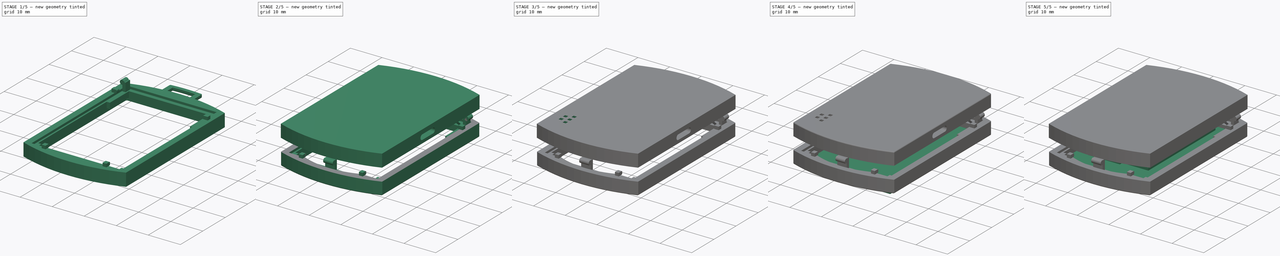
[diagram: build sequence overview — one tinted view per stage of 5, left to right]
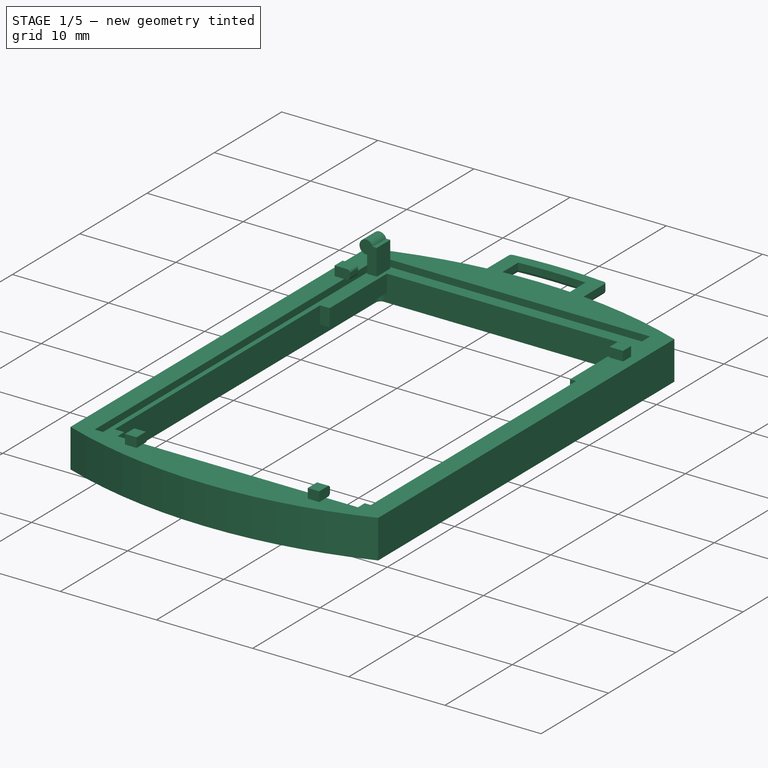
[diagram: stage 1 of 5 — iso view after this stage's code; geometry added in this stage tinted green]
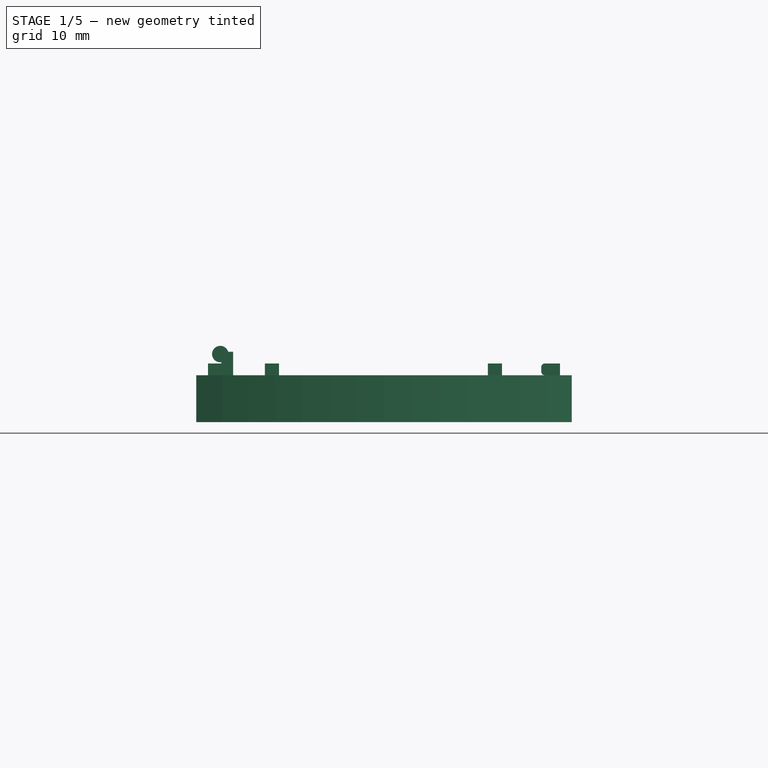
[diagram: stage 1 of 5 — front view after this stage's code; geometry added in this stage tinted green]
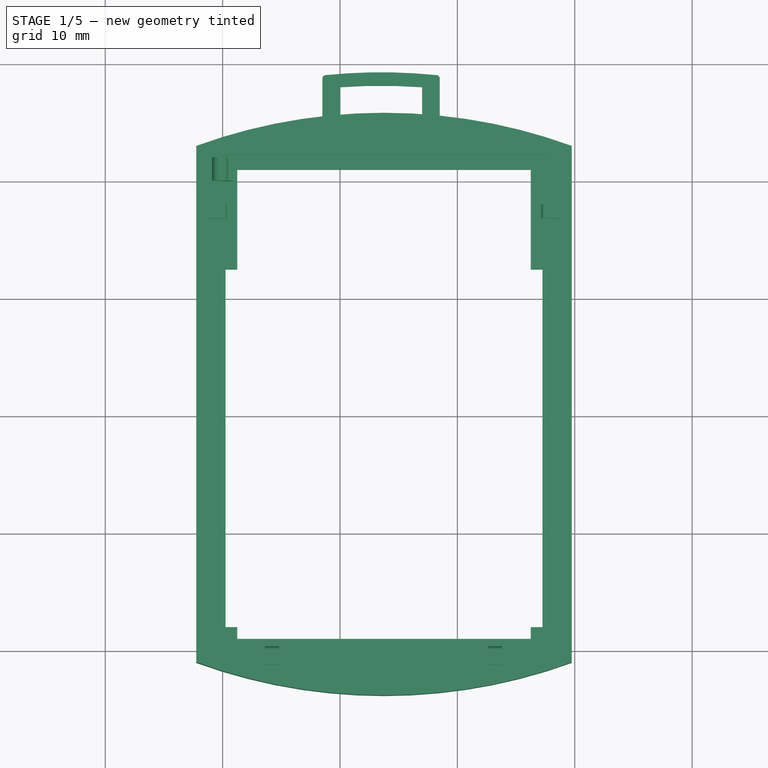
[diagram: stage 1 of 5 — top view after this stage's code; geometry added in this stage tinted green]
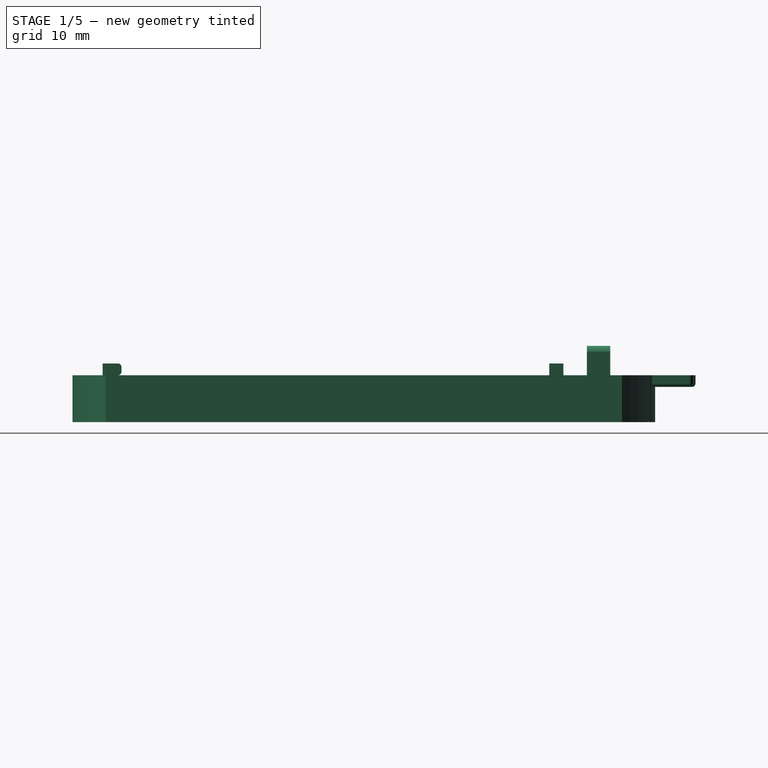
[diagram: stage 1 of 5 — right view after this stage's code; geometry added in this stage tinted green]
FCSTD DOCUMENT  (FreeCAD 0.15R4671 (Git))
Label: UV-case-2.1.4-exp
License: All rights reserved
LicenseURL: http://en.wikipedia.org/wiki/All_rights_reserved
objects: Sketcher::SketchObject×21, Part::Feature×19, Part::Box×17, PartDesign::Pocket×13, App::DocumentObjectGroup×8, PartDesign::Pad×6, Part::MultiFuse×5, Part::Cylinder×4, Part::Fuse×4, PartDesign::Fillet×4, Part::Extrusion×2, Part::Fillet×2
note: 116 computed .brp shape members not serialized (recipe doc carries the construction recipe); baked Part::Feature solids carry a one-line shape summary decoded from their .brp

FEATURE [Sketcher::SketchObject] Sketch  label="Sketch-top"
  Placement = pos=(13.75,21,-4) rot=(0,0,1;0rad)
  sketch-geometry (4):
    g0: ArcOfCircle CenterX=0 CenterY=-22 CenterZ=0 NormalX=0 NormalY=0 NormalZ=1 Radius=46.8188 StartAngle=1.22203 EndAngle=1.91957
    g1: ArcOfCircle CenterX=0 CenterY=22 CenterZ=0 NormalX=0 NormalY=0 NormalZ=1 Radius=46.8188 StartAngle=4.36362 EndAngle=5.06116
    g2: LineSegment StartX=-16 StartY=22 StartZ=0 EndX=-16 EndY=-22 EndZ=0
    g3: LineSegment StartX=16 StartY=-22 StartZ=0 EndX=16 EndY=22 EndZ=0
  constraints (14):
    c: Coincident(g2,g0)
    c: Coincident(g2,g1)
    c: Vertical(g2)
    c: Coincident(g3,g1)
    c: Coincident(g3,g0)
    c: Vertical(g3)
    c: DistanceX(g-1,g0) = -16
    c: DistanceX(g-1,g0) = 16
    c: DistanceY(g-1,g1) = 22
    c: DistanceY(g-1,g0) = -22
    c: DistanceY(g-1,g0) = 22
    c: DistanceY(g-1,g0) = 22
    c: DistanceY(g-1,g1) = -22
    c: DistanceY(g-1,g1) = -22
FEATURE [PartDesign::Pad] Pad001  label="Pad-top"
  Length = 4
  Length2 = 100
  Placement = pos=(13.75,21,-4) rot=(0,0,1;0rad)
  Sketch = -> Sketch
  Type = 0
FEATURE [Sketcher::SketchObject] Sketch002
  Placement = pos=(13.75,21,-4) rot=(1,0,0;3.14159rad)
  Support = -> Pad001 [Face5]
  sketch-geometry (8):
    g0: LineSegment StartX=-13.5 StartY=21 StartZ=0 EndX=13.5 EndY=21 EndZ=0
    g1: LineSegment StartX=14 StartY=20.5 StartZ=0 EndX=14 EndY=-20.5 EndZ=0
    g2: LineSegment StartX=13.5 StartY=-21 StartZ=0 EndX=-13.5 EndY=-21 EndZ=0
    g3: LineSegment StartX=-14 StartY=-20.5 StartZ=0 EndX=-14 EndY=20.5 EndZ=0
    g4: ArcOfCircle CenterX=13.5 CenterY=-20.5 CenterZ=0 NormalX=0 NormalY=0 NormalZ=1 Radius=0.5 StartAngle=4.71239 EndAngle=6.28319
    g5: ArcOfCircle CenterX=13.5 CenterY=20.5 CenterZ=0 NormalX=0 NormalY=0 NormalZ=1 Radius=0.5 StartAngle=0 EndAngle=1.5708
    g6: ArcOfCircle CenterX=-13.5 CenterY=-20.5 CenterZ=0 NormalX=0 NormalY=0 NormalZ=1 Radius=0.5 StartAngle=3.14159 EndAngle=4.71239
    g7: ArcOfCircle CenterX=-13.5 CenterY=20.5 CenterZ=0 NormalX=0 NormalY=0 NormalZ=1 Radius=0.5 StartAngle=1.5708 EndAngle=3.14159
  constraints (20):
    c: Horizontal(g0)
    c: Horizontal(g2)
    c: Vertical(g1)
    c: Vertical(g3)
    c: Tangent(g2,g4) = 1.5708
    c: Tangent(g1,g4) = 1.5708
    c: Tangent(g0,g5) = 1.5708
    c: Tangent(g1,g5) = 1.5708
    c: DistanceX(g1,g5) = -0.5
    c: DistanceX(g4,g1) = 0.5
    c: Tangent(g3,g6) = 1.5708
    c: Tangent(g2,g6) = 1.5708
    c: DistanceX(g3,g6) = 0.5
    c: DistanceX(g-1,g3) = -14
    c: DistanceX(g-1,g1) = 14
    c: DistanceY(g-1,g2) = -21
    c: DistanceY(g-1,g0) = 21
    c: Tangent(g0,g7) = 1.5708
    c: Tangent(g3,g7) = 1.5708
    c: DistanceX(g3,g7) = 0.5
FEATURE [PartDesign::Pocket] Pocket  label="Pocket-plexi"
  Length = 1.5
  Placement = pos=(13.75,21,-4) rot=(0,0,1;0rad)
  Sketch = -> Sketch002
  Type = 0
FEATURE [Sketcher::SketchObject] Sketch003
  Placement = pos=(13.75,21,0) rot=(0,0,1;0rad)
  Support = -> Pocket [Face5]
  sketch-geometry (12):
    g0: LineSegment StartX=-13.5 StartY=-19 StartZ=0 EndX=-13.5 EndY=11.5 EndZ=0
    g1: LineSegment StartX=-13.5 StartY=11.5 StartZ=0 EndX=-12.5 EndY=11.5 EndZ=0
    g2: LineSegment StartX=-12.5 StartY=11.5 StartZ=0 EndX=-12.5 EndY=20 EndZ=0
    g3: LineSegment StartX=-12.5 StartY=20 StartZ=0 EndX=12.5 EndY=20 EndZ=0
    g4: LineSegment StartX=12.5 StartY=20 StartZ=0 EndX=12.5 EndY=11.5 EndZ=0
    g5: LineSegment StartX=12.5 StartY=11.5 StartZ=0 EndX=13.5 EndY=11.5 EndZ=0
    g6: LineSegment StartX=13.5 StartY=11.5 StartZ=0 EndX=13.5 EndY=-19 EndZ=0
    g7: LineSegment StartX=13.5 StartY=-19 StartZ=0 EndX=12.5 EndY=-19 EndZ=0
    g8: LineSegment StartX=12.5 StartY=-19 StartZ=0 EndX=12.5 EndY=-20 EndZ=0
    g9: LineSegment StartX=12.5 StartY=-20 StartZ=0 EndX=-12.5 EndY=-20 EndZ=0
    g10: LineSegment StartX=-12.5 StartY=-20 StartZ=0 EndX=-12.5 EndY=-19 EndZ=0
    g11: LineSegment StartX=-12.5 StartY=-19 StartZ=0 EndX=-13.5 EndY=-19 EndZ=0
  constraints (36):
    c: Vertical(g0)
    c: Coincident(g0,g1)
    c: Coincident(g1,g2)
    c: Coincident(g2,g3)
    c: Coincident(g3,g4)
    c: Coincident(g4,g5)
    c: Coincident(g5,g6)
    c: Vertical(g6)
    c: Coincident(g6,g7)
    c: Horizontal(g7)
    c: Coincident(g7,g8)
    c: Coincident(g8,g9)
    c: Horizontal(g9)
    c: Coincident(g9,g10)
    c: Coincident(g10,g11)
    c: Coincident(g11,g0)
    c: DistanceX(g-1,g9) = -12.5
    c: DistanceX(g-1,g8) = 12.5
    c: DistanceX(g7,g6) = 1
    c: DistanceY(g7,g8) = -1
    c: Vertical(g10)
    c: Horizontal(g1)
    c: Vertical(g2)
    c: Vertical(g4)
    c: Horizontal(g5)
    c: DistanceX(g4,g5) = 1
    c: DistanceX(g1) = 1
    c: DistanceY(g9,g10) = 1
    c: DistanceY(g1,g10) = -30.5
    c: DistanceY(g-1,g9) = -20
    c: DistanceY(g4,g7) = -30.5
    c: DistanceX(g0,g10) = 1
    c: Vertical(g8)
    c: DistanceY(g-1,g2) = 20
    c: DistanceY(g-1,g3) = 20
    c: Horizontal(g11)
FEATURE [PartDesign::Pocket] Pocket001  label="Pocket-LCD"
  Length = 3.5
  Placement = pos=(13.75,21,-4) rot=(0,0,1;0rad)
  Sketch = -> Sketch003
  Type = 0
FEATURE [Sketcher::SketchObject] Sketch004
  Placement = pos=(13.75,21,0) rot=(0,0,1;0rad)
  Support = -> Pocket001 [Face5]
  sketch-geometry (4):
    g0: LineSegment StartX=-14 StartY=21.25 StartZ=0 EndX=14 EndY=21.25 EndZ=0
    g1: LineSegment StartX=14 StartY=21.25 StartZ=0 EndX=14 EndY=-21.25 EndZ=0
    g2: LineSegment StartX=14 StartY=-21.25 StartZ=0 EndX=-14 EndY=-21.25 EndZ=0
    g3: LineSegment StartX=-14 StartY=-21.25 StartZ=0 EndX=-14 EndY=21.25 EndZ=0
  constraints (12):
    c: Coincident(g0,g1)
    c: Coincident(g1,g2)
    c: Coincident(g2,g3)
    c: Coincident(g3,g0)
    c: Horizontal(g0)
    c: Horizontal(g2)
    c: Vertical(g1)
    c: Vertical(g3)
    c: DistanceX(g-1,g2) = -14
    c: DistanceX(g-1,g1) = 14
    c: DistanceY(g-1,g2) = -21.25
    c: DistanceY(g-1,g0) = 21.25
FEATURE [PartDesign::Pocket] Pocket002  label="Pocket-PCB"
  Length = 0.7
  Placement = pos=(13.75,21,-4) rot=(0,0,1;0rad)
  Sketch = -> Sketch004
  Type = 0
FEATURE [Part::Box] Box006  label="Cube-conn-002"
  Height = 3
  Length = 1
  Placement = pos=(-0.1,40,-1) rot=(0,0,1;0rad)
  Width = 2
FEATURE [Part::Cylinder] Cylinder002  label="Cylinder001"
  Angle = 360
  Height = 2
  Placement = pos=(-0.2,42,1.8) rot=(1,0,0;1.5708rad)
  Radius = 0.7
FEATURE [Sketcher::SketchObject] Sketch023
  sketch-geometry (16):
    g0: LineSegment StartX=4.8 StartY=0.35 StartZ=0 EndX=3.6 EndY=0.35 EndZ=0
    g1: LineSegment StartX=3.6 StartY=0.35 StartZ=0 EndX=3.6 EndY=-1.25 EndZ=0
    g2: LineSegment StartX=3.6 StartY=-1.25 StartZ=0 EndX=4.8 EndY=-1.25 EndZ=0
    g3: LineSegment StartX=4.8 StartY=-1.25 StartZ=0 EndX=4.8 EndY=0.35 EndZ=0
    g4: LineSegment StartX=22.6 StartY=0.35 StartZ=0 EndX=23.8 EndY=0.35 EndZ=0
    g5: LineSegment StartX=23.8 StartY=0.35 StartZ=0 EndX=23.8 EndY=-1.25 EndZ=0
    g6: LineSegment StartX=23.8 StartY=-1.25 StartZ=0 EndX=22.6 EndY=-1.25 EndZ=0
    g7: LineSegment StartX=22.6 StartY=-1.25 StartZ=0 EndX=22.6 EndY=0.35 EndZ=0
    g8: LineSegment StartX=-1.25 StartY=38 StartZ=0 EndX=0.35 EndY=38 EndZ=0
    g9: LineSegment StartX=0.35 StartY=38 StartZ=0 EndX=0.35 EndY=36.8 EndZ=0
    g10: LineSegment StartX=0.35 StartY=36.8 StartZ=0 EndX=-1.25 EndY=36.8 EndZ=0
    g11: LineSegment StartX=-1.25 StartY=36.8 StartZ=0 EndX=-1.25 EndY=38 EndZ=0
    g12: LineSegment StartX=27.15 StartY=38 StartZ=0 EndX=28.75 EndY=38 EndZ=0
    g13: LineSegment StartX=28.75 StartY=38 StartZ=0 EndX=28.75 EndY=36.8 EndZ=0
    g14: LineSegment StartX=28.75 StartY=36.8 StartZ=0 EndX=27.15 EndY=36.8 EndZ=0
    g15: LineSegment StartX=27.15 StartY=36.8 StartZ=0 EndX=27.15 EndY=38 EndZ=0
  constraints (48):
    c: Coincident(g0,g1)
    c: Coincident(g1,g2)
    c: Coincident(g2,g3)
    c: Coincident(g3,g0)
    c: Horizontal(g0)
    c: Horizontal(g2)
    c: Vertical(g1)
    c: Vertical(g3)
    c: DistanceY(g1) = -1.6
    c: DistanceX(g2) = 1.2
    c: Coincident(g4,g5)
    c: Coincident(g5,g6)
    c: Coincident(g6,g7)
    c: Coincident(g7,g4)
    c: Horizontal(g4)
    c: Horizontal(g6)
    c: Vertical(g5)
    c: Vertical(g7)
    c: DistanceY(g5) = -1.6
    c: DistanceX(g4) = 1.2
    c: Coincident(g8,g9)
    c: Coincident(g9,g10)
    c: Coincident(g10,g11)
    c: Coincident(g11,g8)
    c: Horizontal(g8)
    c: Horizontal(g10)
    c: Vertical(g9)
    c: Vertical(g11)
    c: DistanceY(g11) = 1.2
    c: DistanceX(g10) = -1.6
    c: Coincident(g12,g13)
    c: Coincident(g13,g14)
    c: Coincident(g14,g15)
    c: Coincident(g15,g12)
    c: Horizontal(g12)
    c: Horizontal(g14)
    c: Vertical(g13)
    c: Vertical(g15)
    c: DistanceY(g13) = -1.2
    c: DistanceY(g12) = 38
    c: DistanceX(g13) = 28.75
    c: DistanceX(g12) = 1.6
    c: DistanceY(g-1,g0) = 0.35
    c: DistanceY(g-1,g4) = 0.35
    c: DistanceX(g-1,g9) = 0.35
    c: DistanceY(g-1,g8) = 38
    c: DistanceX(g-1,g1) = 3.6
    c: DistanceX(g-1,g6) = 22.6
FEATURE [PartDesign::Pad] Pad005  label="Pad-pcb-grips"
  Length = 1
  Length2 = 100
  Sketch = -> Sketch023
  Type = 0
FEATURE [PartDesign::Pad] Pad006  label="Pad006-hanger"
  Length = 1
  Length2 = 100
  Placement = pos=(13.5,1,-1) rot=(0,0,1;0rad)
  Sketch = -> Sketch019
  Type = 0
FEATURE [PartDesign::Fillet] Fillet008  label="Fillet008-hanger-top"
  Base = -> Pad006 [Edge23,Edge18,Edge1,Edge3,Edge15,Edge12,Edge6,Edge2]
  Placement = pos=(13.5,1,-1) rot=(0,0,1;0rad)
  Radius = 0.3
FEATURE [App::DocumentObjectGroup] Group002  label="Bottom"
  Group = -> [Pad,Pocket003,Pocket004,Pad002,Pocket006,Pocket007,Pocket008,Pocket009,Pocket010,Pocket011,Fusion014,Fillet,Fillet009]
FEATURE [Part::MultiFuse] Fusion015  label="Fusion015-conn-2"
  Shapes = -> [Box006,Cylinder002]
FEATURE [Part::Fillet] Fillet010
  Base = -> Pad005
  Edges = 8 edges r=0.3: [Edge11,Edge12,Edge18,Edge19,Edge27,Edge28,Edge39,Edge40]
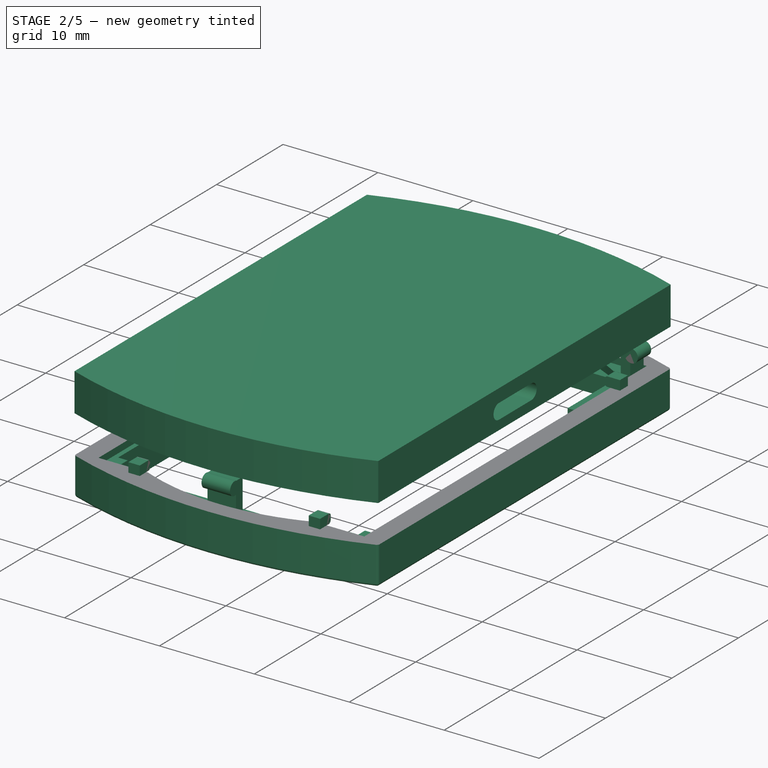
[diagram: stage 2 of 5 — iso view after this stage's code; geometry added in this stage tinted green]
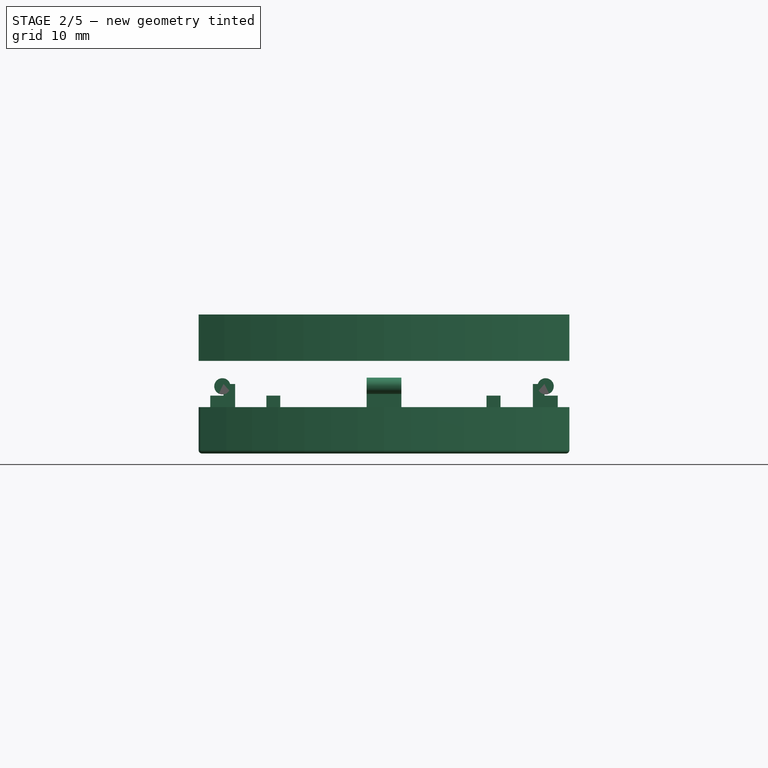
[diagram: stage 2 of 5 — front view after this stage's code; geometry added in this stage tinted green]
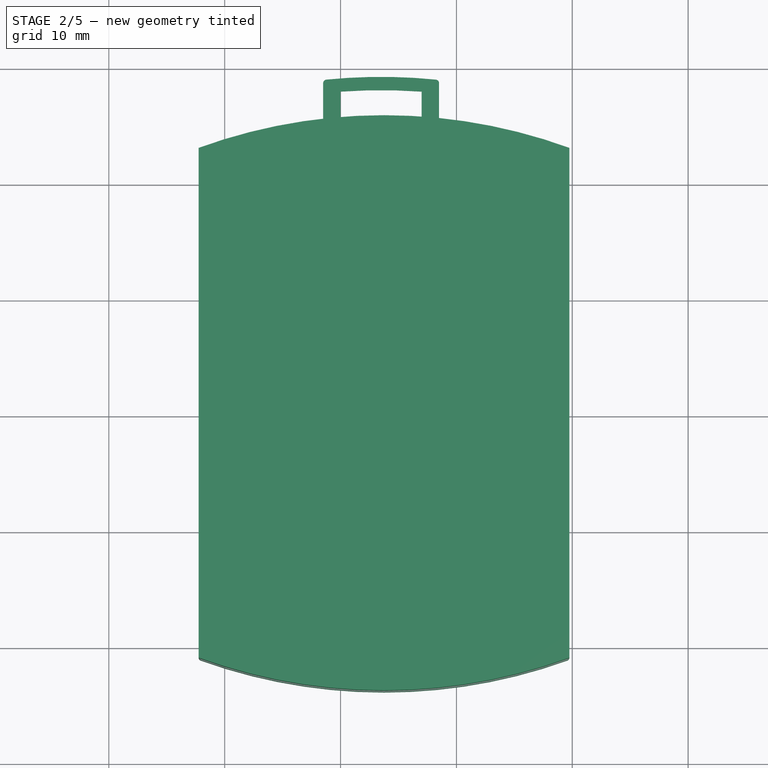
[diagram: stage 2 of 5 — top view after this stage's code; geometry added in this stage tinted green]
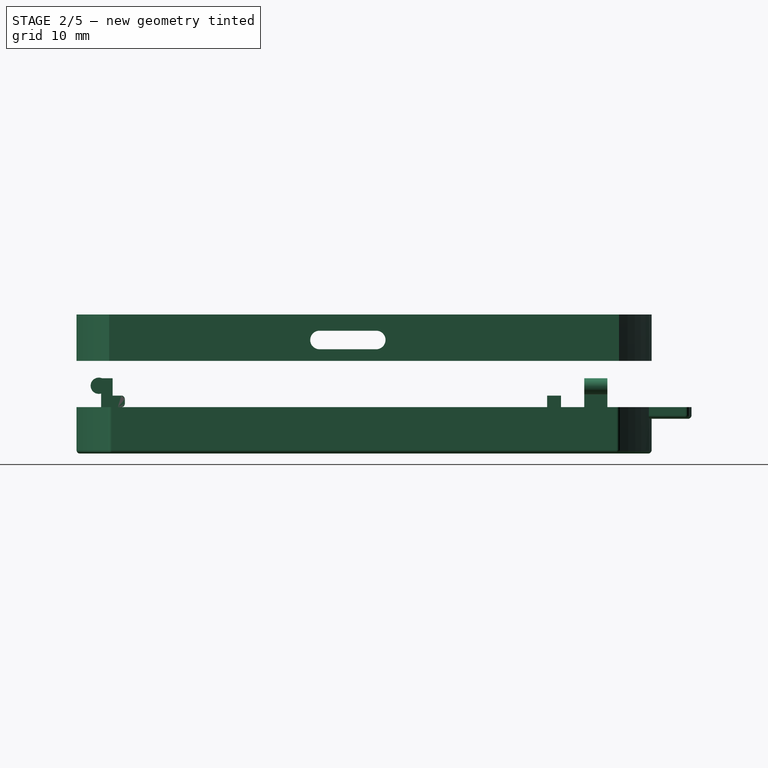
[diagram: stage 2 of 5 — right view after this stage's code; geometry added in this stage tinted green]
FEATURE [Sketcher::SketchObject] Sketch001  label="Sketch-btm"
  Placement = pos=(13.75,21,0) rot=(0,0,1;0rad)
  sketch-geometry (4):
    g0: ArcOfCircle CenterX=0 CenterY=-22 CenterZ=0 NormalX=0 NormalY=0 NormalZ=1 Radius=46.8188 StartAngle=1.22203 EndAngle=1.91957
    g1: ArcOfCircle CenterX=0 CenterY=22 CenterZ=0 NormalX=0 NormalY=0 NormalZ=1 Radius=46.8188 StartAngle=4.36362 EndAngle=5.06116
    g2: LineSegment StartX=-16 StartY=22 StartZ=0 EndX=-16 EndY=-22 EndZ=0
    g3: LineSegment StartX=16 StartY=-22 StartZ=0 EndX=16 EndY=22 EndZ=0
  constraints (14):
    c: Coincident(g2,g0)
    c: Coincident(g2,g1)
    c: Vertical(g2)
    c: Coincident(g3,g1)
    c: Coincident(g3,g0)
    c: Vertical(g3)
    c: DistanceX(g-1,g0) = -16
    c: DistanceX(g-1,g0) = 16
    c: DistanceY(g-1,g1) = 22
    c: DistanceY(g-1,g0) = -22
    c: DistanceY(g-1,g0) = 22
    c: DistanceY(g-1,g0) = 22
    c: DistanceY(g-1,g1) = -22
    c: DistanceY(g-1,g1) = -22
FEATURE [PartDesign::Pad] Pad  label="Pad-btm"
  Length = 4
  Length2 = 100
  Placement = pos=(13.75,21,0) rot=(0,0,1;0rad)
  Sketch = -> Sketch001
  Type = 0
FEATURE [Sketcher::SketchObject] Sketch005
  Placement = pos=(13.75,21,0) rot=(1,0,0;3.14159rad)
  Support = -> Pad [Face5]
  sketch-geometry (10):
    g0: LineSegment StartX=14 StartY=21.25 StartZ=0 EndX=14 EndY=-21.25 EndZ=0
    g1: LineSegment StartX=-14 StartY=-21.25 StartZ=0 EndX=-14 EndY=21.25 EndZ=0
    g2: ArcOfCircle CenterX=0 CenterY=0 CenterZ=0 NormalX=0 NormalY=0 NormalZ=1 Radius=23 StartAngle=1.17818 EndAngle=1.43999
    g3: LineSegment StartX=-14 StartY=21.25 StartZ=0 EndX=-8.79986 EndY=21.25 EndZ=0
    g4: LineSegment StartX=8.79986 StartY=21.25 StartZ=0 EndX=14 EndY=21.25 EndZ=0
    g5: ArcOfCircle CenterX=0 CenterY=0 CenterZ=0 NormalX=0 NormalY=0 NormalZ=1 Radius=23 StartAngle=4.31978 EndAngle=5.105
    g6: LineSegment StartX=8.79986 StartY=-21.25 StartZ=0 EndX=14 EndY=-21.25 EndZ=0
    g7: LineSegment StartX=-8.79986 StartY=-21.25 StartZ=0 EndX=-14 EndY=-21.25 EndZ=0
    g8: LineSegment StartX=3 StartY=22.8035 StartZ=0 EndX=-3 EndY=22.8035 EndZ=0
    g9: ArcOfCircle CenterX=0 CenterY=0 CenterZ=0 NormalX=0 NormalY=0 NormalZ=1 Radius=23 StartAngle=1.7016 EndAngle=1.96341
  constraints (30):
    c: Vertical(g0)
    c: Vertical(g1)
    c: DistanceX(g-1,g1) = -14
    c: DistanceX(g-1,g0) = 14
    c: DistanceY(g-1,g1) = 21.25
    c: Radius(g2) = 23
    c: Coincident(g3,g1)
    c: Coincident(g3,g9)
    c: Coincident(g4,g2)
    c: Coincident(g4,g0)
    c: Horizontal(g4)
    c: Horizontal(g3)
    c: Coincident(g2,g-1)
    c: Coincident(g5,g-1)
    c: Radius(g5) = 23
    c: Coincident(g6,g0)
    c: Horizontal(g6)
    c: Coincident(g7,g1)
    c: Horizontal(g7)
    c: Coincident(g7,g5)
    c: DistanceY(g-1,g1) = -21.25
    c: Coincident(g6,g5)
    c: DistanceY(g-1,g2) = 21.25
    c: DistanceY(g-1,g5) = -21.25
    c: Horizontal(g8)
    c: Equal(g2,g9)
    c: Coincident(g2,g8)
    c: Coincident(g9,g8)
    c: Coincident(g2,g9)
    c: DistanceX(g8) = -6
FEATURE [PartDesign::Pocket] Pocket003  label="Pocket-body-hole"
  Length = 3
  Placement = pos=(13.75,21,0) rot=(0,0,1;0rad)
  Sketch = -> Sketch005
  Type = 0
FEATURE [Sketcher::SketchObject] Sketch007
  Placement = pos=(-2.25,21,0) rot=(0.57735,-0.57735,-0.57735;2.0944rad)
  Support = -> Pocket003 [Face3]
  sketch-geometry (4):
    g0: ArcOfCircle CenterX=-1.05 CenterY=1.8 CenterZ=0 NormalX=0 NormalY=0 NormalZ=1 Radius=0.8 StartAngle=1.5708 EndAngle=4.71239
    g1: ArcOfCircle CenterX=3.85 CenterY=1.8 CenterZ=0 NormalX=0 NormalY=0 NormalZ=1 Radius=0.8 StartAngle=4.71239 EndAngle=7.85398
    g2: LineSegment StartX=-1.05 StartY=1 StartZ=0 EndX=3.85 EndY=1 EndZ=0
    g3: LineSegment StartX=-1.05 StartY=2.6 StartZ=0 EndX=3.85 EndY=2.6 EndZ=0
  constraints (10):
    c: Tangent(g0,g3) = 1.5708
    c: Tangent(g0,g2) = -1.5708
    c: Tangent(g2,g1) = -1.5708
    c: Tangent(g3,g1) = 1.5708
    c: Horizontal(g2)
    c: Equal(g0,g1)
    c: DistanceY(g-1,g0) = 1
    c: DistanceY(g0,g0) = 1.6
    c: DistanceX(g0,g1) = 4.9
    c: DistanceX(g-1,g0) = -1.05
FEATURE [PartDesign::Pocket] Pocket004  label="Pocket-btn-hole"
  Length = 28
  Placement = pos=(13.75,21,0) rot=(0,0,1;0rad)
  Sketch = -> Sketch007
  Type = 1
FEATURE [Part::Box] Box005  label="Cube-conn-1"
  Height = 3
  Length = 1
  Placement = pos=(-0.1,40,-1) rot=(0,0,1;0rad)
  Width = 2
FEATURE [Part::Cylinder] Cylinder001  label="Cylinder"
  Angle = 360
  Height = 2
  Placement = pos=(-0.2,42,1.8) rot=(1,0,0;1.5708rad)
  Radius = 0.7
FEATURE [Part::Fuse] Fusion002  label="Fusion-conn-1"
  Base = -> Box005
  Placement = pos=(27.5,82,0) rot=(0,0,1;3.14159rad)
  Tool = -> Cylinder001
FEATURE [Part::Box] Box007  label="Cube-conn-003"
  Height = 4.5
  Length = 3
  Placement = pos=(12.25,-1.7,-2) rot=(0,0,1;0rad)
  Width = 1
FEATURE [Part::Cylinder] Cylinder003  label="Cylinder002"
  Angle = 360
  Height = 3
  Placement = pos=(12.25,-1.9,1.85) rot=(0,1,0;1.5708rad)
  Radius = 0.7
FEATURE [Part::Fuse] Fusion004  label="Fusion-conn-top"
  Base = -> Box007
  Tool = -> Cylinder003
FEATURE [Part::Feature] Board_outline
  shape: bbox 27.75 x 42 x 0.6 mm, 38 faces (baked)
FEATURE [App::DocumentObjectGroup] Board_Geoms
  Group = -> [Board_outline]
FEATURE [Part::Feature] C1
  Placement = pos=(24.29,27.72,-0.6) rot=(1,0,0;3.14159rad)
  shape: bbox 3.997 x 1.991 x 1 mm, 6 faces (baked)
FEATURE [Part::Feature] C2
  Placement = pos=(18.72,6.31,0) rot=(0,0,1;1.5708rad)
  shape: bbox 1.991 x 3.997 x 1 mm, 6 faces (baked)
FEATURE [Part::Feature] C3
  Placement = pos=(13.99,5.68,0) rot=(0,0,1;0rad)
  shape: bbox 3.997 x 1.991 x 1 mm, 6 faces (baked)
FEATURE [Part::Feature] C4
  Placement = pos=(9.28,6.21,0) rot=(0,0,-1;1.5708rad)
  shape: bbox 1.991 x 3.997 x 1 mm, 6 faces (baked)
FEATURE [Part::Feature] C5
  Placement = pos=(20.35,32.25,-0.6) rot=(1,0,0;3.14159rad)
  shape: bbox 3.997 x 1.991 x 1 mm, 6 faces (baked)
FEATURE [Part::Feature] D1
  Placement = pos=(5.1,13.25,0) rot=(0,0,1;1.5708rad)
  shape: bbox 1.7 x 2.152 x 1 mm, 6 faces (baked)
FEATURE [Part::Feature] IC1
  Placement = pos=(3.05,5.8,0) rot=(0,0,1;1.5708rad)
  shape: bbox 2.2 x 2.6 x 1 mm, 6 faces (baked)
FEATURE [Part::Feature] Q1
  Placement = pos=(2.85,12.95,-0.6) rot=(0,1,0;3.14159rad)
  shape: bbox 2.921 x 2.591 x 1 mm, 6 faces (baked)
FEATURE [Part::Feature] R4
  Placement = pos=(23.12,19.05,-0.6) rot=(0.707107,0.707107,0;3.14159rad)
  shape: bbox 1.966 x 3.946 x 1 mm, 6 faces (baked)
FEATURE [Part::Feature] R5
  Placement = pos=(5.22,18.75,-0.6) rot=(0.707107,0.707107,0;3.14159rad)
  shape: bbox 1.966 x 3.946 x 1 mm, 6 faces (baked)
FEATURE [Part::Feature] R6
  Placement = pos=(2.23,18.74,-0.6) rot=(0.707107,-0.707107,0;3.14159rad)
  shape: bbox 1.966 x 3.946 x 1 mm, 6 faces (baked)
FEATURE [Part::Feature] U1
  Placement = pos=(20.75,36.6,-0.6) rot=(0,1,0;3.14159rad)
  shape: bbox 4 x 3.814 x 1 mm, 6 faces (baked)
FEATURE [Part::Feature] U_1
  Placement = pos=(13.85,31.65,0) rot=(0,0,1;0rad)
  shape: bbox 21.33 x 20.33 x 1 mm, 6 faces (baked)
FEATURE [Part::Feature] U_2
  Placement = pos=(3.2,19.1,0) rot=(0,0,-1;1.5708rad)
  shape: bbox 3.59 x 4.2 x 1 mm, 6 faces (baked)
FEATURE [Part::Feature] U_3
  Placement = pos=(13.85,20.63,-0.6) rot=(0.707107,-0.707107,0;3.14159rad)
  shape: bbox 6.242 x 6.482 x 1 mm, 6 faces (baked)
FEATURE [Part::Feature] U_4
  Placement = pos=(24.35,6.05,0) rot=(0,0,1;1.5708rad)
  shape: bbox 6 x 16 x 1 mm, 6 faces (baked)
FEATURE [Part::Feature] U_5
  Placement = pos=(24.55,19.15,0) rot=(0,0,1;1.5708rad)
  shape: bbox 3.59 x 4.2 x 1 mm, 6 faces (baked)
FEATURE [Part::Feature] X1
  Placement = pos=(13.9,11.5,0) rot=(0,0,1;0rad)
  shape: bbox 10.46 x 5.627 x 1 mm, 6 faces (baked)
FEATURE [App::DocumentObjectGroup] EMP_Models
  Group = -> [C1,C2,C3,C4,C5,D1,IC1,Q1,R4,R5,R6,U1,U_1,U_2,U_3,U_4,U_5,X1]
FEATURE [PartDesign::Pocket] Pocket005  label="Pocket-iv-1"
  Length = 1.5
  Placement = pos=(13.75,21,-4) rot=(0,0,1;0rad)
  Sketch = -> Sketch008
  Type = 0
FEATURE [PartDesign::Fillet] Fillet007  label="Fillet007-top"
  Base = -> Pocket005 [Edge9,Edge2,Edge3,Edge1,Edge6,Edge5,Edge11,Edge8]
  Placement = pos=(13.75,21,-4) rot=(0,0,1;0rad)
  Radius = 0.3
FEATURE [Part::MultiFuse] Fusion016
  Placement = pos=(0,0,-4) rot=(0,0,1;0rad)
  Shapes = -> [Fusion015,Fusion002,Fusion004,Fillet010,Fillet007,Fillet008]
FEATURE [App::DocumentObjectGroup] Group003  label="Top"
  Group = -> [Pad001,Pocket,Pocket001,Pocket002,Pad005,Pad006,Pocket005,Fusion016]
FEATURE [App::DocumentObjectGroup] Group001  label="case"
  Group = -> [Group002,Group003]
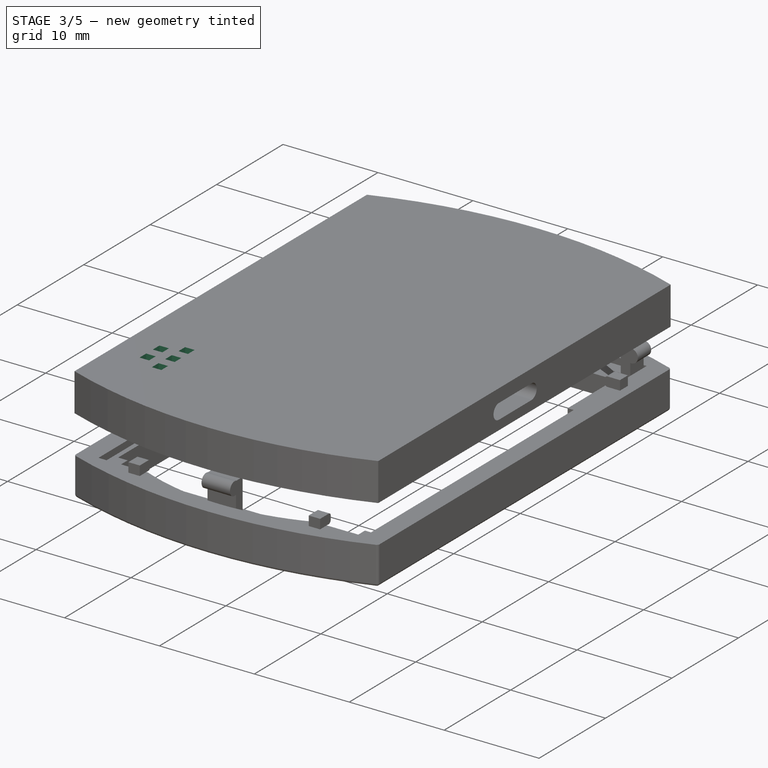
[diagram: stage 3 of 5 — iso view after this stage's code; geometry added in this stage tinted green]
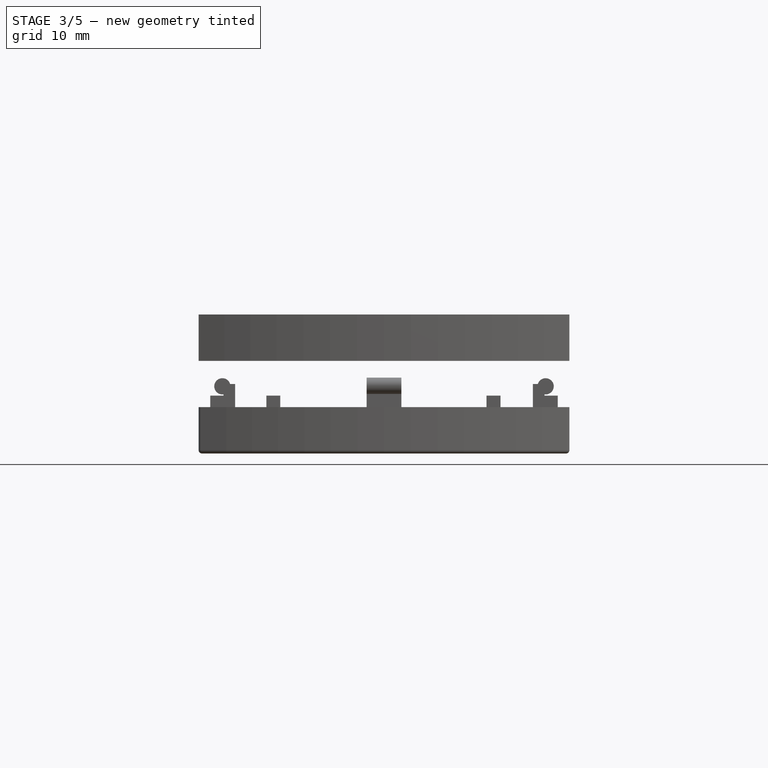
[diagram: stage 3 of 5 — front view after this stage's code; geometry added in this stage tinted green]
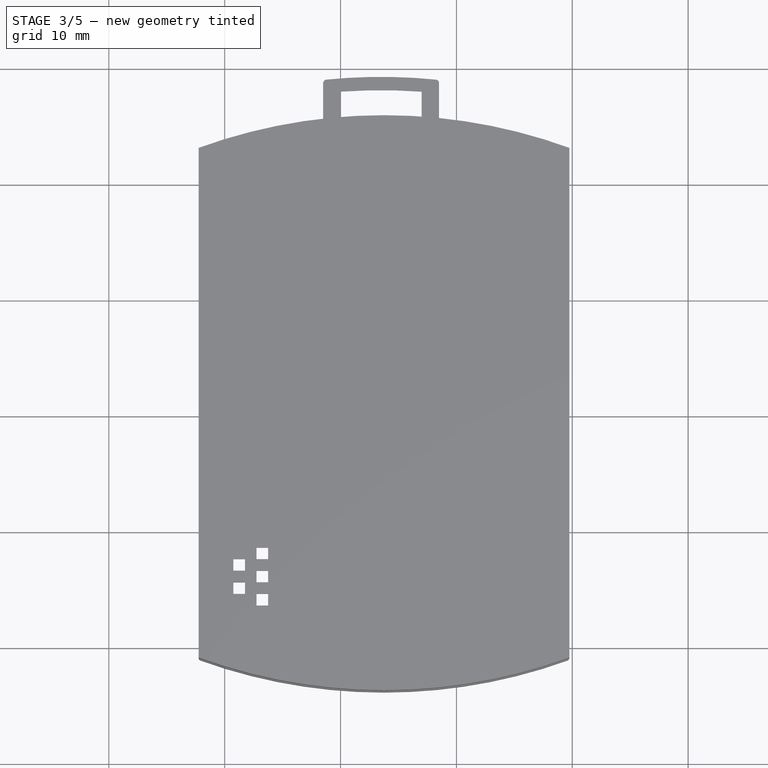
[diagram: stage 3 of 5 — top view after this stage's code; geometry added in this stage tinted green]
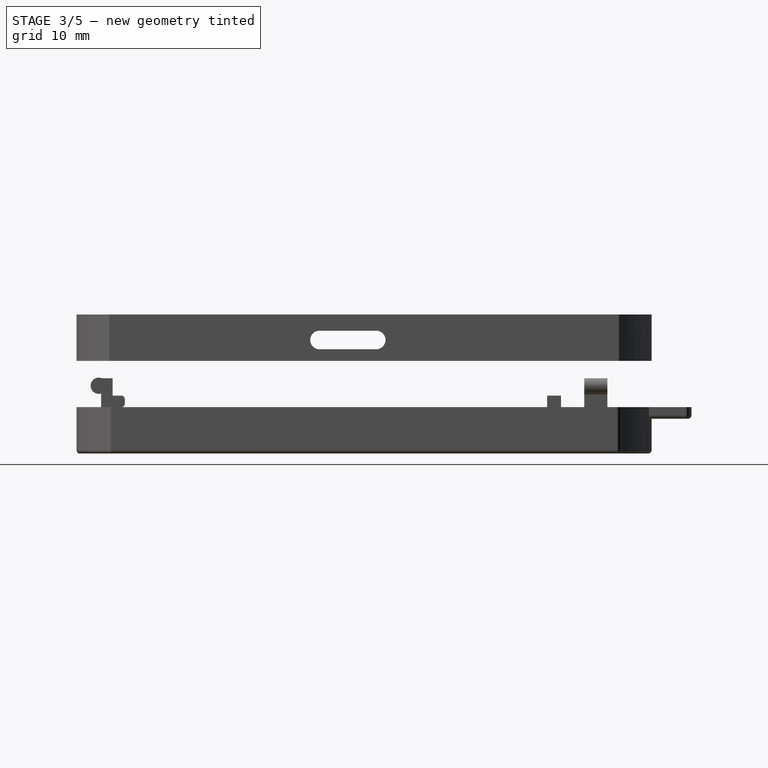
[diagram: stage 3 of 5 — right view after this stage's code; geometry added in this stage tinted green]
FEATURE [Sketcher::SketchObject] Sketch012
  Placement = pos=(13.75,-1.80351,0) rot=(0,0.707107,0.707107;3.14159rad)
  Support = -> Pocket004 [Face17]
  sketch-geometry (4):
    g0: LineSegment StartX=-1.55 StartY=3 StartZ=0 EndX=1.55 EndY=3 EndZ=0
    g1: LineSegment StartX=1.55 StartY=3 StartZ=0 EndX=1.55 EndY=1 EndZ=0
    g2: LineSegment StartX=1.55 StartY=1 StartZ=0 EndX=-1.55 EndY=1 EndZ=0
    g3: LineSegment StartX=-1.55 StartY=1 StartZ=0 EndX=-1.55 EndY=3 EndZ=0
  constraints (12):
    c: Coincident(g0,g1)
    c: Coincident(g1,g2)
    c: Coincident(g2,g3)
    c: Coincident(g3,g0)
    c: Horizontal(g0)
    c: Horizontal(g2)
    c: Vertical(g1)
    c: Vertical(g3)
    c: DistanceY(g1) = -2
    c: DistanceX(g-1,g1) = 1.55
    c: DistanceX(g-1,g2) = -1.55
    c: DistanceY(g-1,g1) = 1
FEATURE [PartDesign::Pocket] Pocket006  label="Pocket-conn-top"
  Length = 1
  Placement = pos=(13.75,21,0) rot=(0,0,1;0rad)
  Sketch = -> Sketch012
  Type = 0
FEATURE [Sketcher::SketchObject] Sketch013
  ExternalGeometry = -> [Pocket006]
  Placement = pos=(-0.25,21,0) rot=(0.57735,0.57735,0.57735;2.0944rad)
  Support = -> Pocket006 [Face20]
  sketch-geometry (4):
    g0: LineSegment StartX=21.05 StartY=3 StartZ=0 EndX=18.95 EndY=3 EndZ=0
    g1: LineSegment StartX=18.95 StartY=3 StartZ=0 EndX=18.95 EndY=1 EndZ=0
    g2: LineSegment StartX=18.95 StartY=1 StartZ=0 EndX=21.05 EndY=1 EndZ=0
    g3: LineSegment StartX=21.05 StartY=1 StartZ=0 EndX=21.05 EndY=3 EndZ=0
  constraints (12):
    c: Coincident(g0,g1)
    c: Coincident(g1,g2)
    c: Coincident(g2,g3)
    c: Coincident(g3,g0)
    c: Horizontal(g0)
    c: Horizontal(g2)
    c: Vertical(g1)
    c: Vertical(g3)
    c: DistanceY(g-1,g2) = 1
    c: DistanceX(g-3,g2) = -0.2
    c: DistanceX(g2) = 2.1
    c: DistanceY(g1) = -2
FEATURE [PartDesign::Pocket] Pocket007  label="Pocket-conn-1"
  Length = 1
  Placement = pos=(13.75,21,0) rot=(0,0,1;0rad)
  Sketch = -> Sketch013
  Type = 0
FEATURE [Sketcher::SketchObject] Sketch014
  Placement = pos=(27.75,21,0) rot=(0.57735,-0.57735,-0.57735;2.0944rad)
  Support = -> Pocket007 [Face24]
  sketch-geometry (4):
    g0: LineSegment StartX=-21.05 StartY=3 StartZ=0 EndX=-18.95 EndY=3 EndZ=0
    g1: LineSegment StartX=-18.95 StartY=3 StartZ=0 EndX=-18.95 EndY=1 EndZ=0
    g2: LineSegment StartX=-18.95 StartY=1 StartZ=0 EndX=-21.05 EndY=1 EndZ=0
    g3: LineSegment StartX=-21.05 StartY=1 StartZ=0 EndX=-21.05 EndY=3 EndZ=0
  constraints (12):
    c: Coincident(g0,g1)
    c: Coincident(g1,g2)
    c: Coincident(g2,g3)
    c: Coincident(g3,g0)
    c: Horizontal(g0)
    c: Horizontal(g2)
    c: Vertical(g1)
    c: Vertical(g3)
    c: DistanceX(g0) = 2.1
    c: DistanceY(g-1,g1) = 1
    c: DistanceY(g1) = -2
    c: DistanceX(g-1,g0) = -21.05
FEATURE [PartDesign::Pocket] Pocket008  label="Pocket-conn-2"
  Length = 1
  Placement = pos=(13.75,21,0) rot=(0,0,1;0rad)
  Sketch = -> Sketch014
  Type = 0
FEATURE [Part::Box] Box008  label="Cube-cavity-1"
  Height = 3
  Length = 6
  Placement = pos=(-0.5,9,0) rot=(0,0,1;0rad)
  Width = 1
FEATURE [Part::Box] Box009  label="Cube-cavity-2"
  Height = 3
  Length = 1
  Placement = pos=(5.5,2,0) rot=(0,0,1;0rad)
  Width = 8
FEATURE [Part::Box] Box010  label="Cube-cavity-003"
  Height = 3
  Length = 6
  Placement = pos=(-0.5,2,0) rot=(0,0,1;0rad)
  Width = 1
FEATURE [Sketcher::SketchObject] Sketch016
  Placement = pos=(-2.25,21,0) rot=(0.57735,-0.57735,-0.57735;2.0944rad)
  Support = -> Pocket008 [Face3]
  sketch-geometry (12):
    g0: LineSegment StartX=12.5 StartY=2.5 StartZ=0 EndX=13.5 EndY=2.5 EndZ=0
    g1: LineSegment StartX=13.5 StartY=2.5 StartZ=0 EndX=13.5 EndY=1.5 EndZ=0
    g2: LineSegment StartX=13.5 StartY=1.5 StartZ=0 EndX=12.5 EndY=1.5 EndZ=0
    g3: LineSegment StartX=12.5 StartY=1.5 StartZ=0 EndX=12.5 EndY=2.5 EndZ=0
    g4: LineSegment StartX=14.5 StartY=2.5 StartZ=0 EndX=15.5 EndY=2.5 EndZ=0
    g5: LineSegment StartX=15.5 StartY=2.5 StartZ=0 EndX=15.5 EndY=1.5 EndZ=0
    g6: LineSegment StartX=15.5 StartY=1.5 StartZ=0 EndX=14.5 EndY=1.5 EndZ=0
    g7: LineSegment StartX=14.5 StartY=1.5 StartZ=0 EndX=14.5 EndY=2.5 EndZ=0
    g8: LineSegment StartX=16.5 StartY=2.5 StartZ=0 EndX=17.5 EndY=2.5 EndZ=0
    g9: LineSegment StartX=17.5 StartY=2.5 StartZ=0 EndX=17.5 EndY=1.5 EndZ=0
    g10: LineSegment StartX=17.5 StartY=1.5 StartZ=0 EndX=16.5 EndY=1.5 EndZ=0
    g11: LineSegment StartX=16.5 StartY=1.5 StartZ=0 EndX=16.5 EndY=2.5 EndZ=0
  constraints (36):
    c: Coincident(g0,g1)
    c: Coincident(g1,g2)
    c: Coincident(g2,g3)
    c: Coincident(g3,g0)
    c: Horizontal(g0)
    c: Horizontal(g2)
    c: Vertical(g1)
    c: Vertical(g3)
    c: Coincident(g4,g5)
    c: Coincident(g5,g6)
    c: Coincident(g6,g7)
    c: Coincident(g7,g4)
    c: Horizontal(g4)
    c: Horizontal(g6)
    c: Vertical(g5)
    c: Vertical(g7)
    c: Coincident(g8,g9)
    c: Coincident(g9,g10)
    c: Coincident(g10,g11)
    c: Coincident(g11,g8)
    c: Horizontal(g8)
    c: Horizontal(g10)
    c: Vertical(g9)
    c: Vertical(g11)
    c: Equal(g0,g3)
    c: DistanceX(g0) = 1
    c: Equal(g7,g4)
    c: DistanceX(g4) = 1
    c: Equal(g11,g8)
    c: DistanceX(g8,g8) = -1
    c: DistanceX(g-1,g10) = 16.5
    c: DistanceX(g-1,g2) = 12.5
    c: DistanceX(g-1,g6) = 14.5
    c: DistanceY(g-1,g2) = 1.5
    c: DistanceY(g-1,g10) = 1.5
    c: DistanceY(g-1,g6) = 1.5
FEATURE [PartDesign::Pocket] Pocket009  label="Pocket-vent-1"
  Length = 2
  Placement = pos=(13.75,21,0) rot=(0,0,1;0rad)
  Sketch = -> Sketch016
  Type = 0
FEATURE [Sketcher::SketchObject] Sketch018
  Placement = pos=(13.75,21,4) rot=(0,0,1;0rad)
  Support = -> Pocket009 [Face5]
  sketch-geometry (20):
    g0: LineSegment StartX=-11 StartY=-12.5 StartZ=0 EndX=-10 EndY=-12.5 EndZ=0
    g1: LineSegment StartX=-10 StartY=-12.5 StartZ=0 EndX=-10 EndY=-13.5 EndZ=0
    g2: LineSegment StartX=-10 StartY=-13.5 StartZ=0 EndX=-11 EndY=-13.5 EndZ=0
    g3: LineSegment StartX=-11 StartY=-13.5 StartZ=0 EndX=-11 EndY=-12.5 EndZ=0
    g4: LineSegment StartX=-11 StartY=-14.5 StartZ=0 EndX=-10 EndY=-14.5 EndZ=0
    g5: LineSegment StartX=-10 StartY=-14.5 StartZ=0 EndX=-10 EndY=-15.5 EndZ=0
    g6: LineSegment StartX=-10 StartY=-15.5 StartZ=0 EndX=-11 EndY=-15.5 EndZ=0
    g7: LineSegment StartX=-11 StartY=-15.5 StartZ=0 EndX=-11 EndY=-14.5 EndZ=0
    g8: LineSegment StartX=-11 StartY=-16.5 StartZ=0 EndX=-10 EndY=-16.5 EndZ=0
    g9: LineSegment StartX=-10 StartY=-16.5 StartZ=0 EndX=-10 EndY=-17.5 EndZ=0
    g10: LineSegment StartX=-10 StartY=-17.5 StartZ=0 EndX=-11 EndY=-17.5 EndZ=0
    g11: LineSegment StartX=-11 StartY=-17.5 StartZ=0 EndX=-11 EndY=-16.5 EndZ=0
    g12: LineSegment StartX=-13 StartY=-13.5 StartZ=0 EndX=-12 EndY=-13.5 EndZ=0
    g13: LineSegment StartX=-12 StartY=-13.5 StartZ=0 EndX=-12 EndY=-14.5 EndZ=0
    g14: LineSegment StartX=-12 StartY=-14.5 StartZ=0 EndX=-13 EndY=-14.5 EndZ=0
    g15: LineSegment StartX=-13 StartY=-14.5 StartZ=0 EndX=-13 EndY=-13.5 EndZ=0
    g16: LineSegment StartX=-13 StartY=-15.5 StartZ=0 EndX=-12 EndY=-15.5 EndZ=0
    g17: LineSegment StartX=-12 StartY=-15.5 StartZ=0 EndX=-12 EndY=-16.5 EndZ=0
    g18: LineSegment StartX=-12 StartY=-16.5 StartZ=0 EndX=-13 EndY=-16.5 EndZ=0
    g19: LineSegment StartX=-13 StartY=-16.5 StartZ=0 EndX=-13 EndY=-15.5 EndZ=0
  constraints (61):
    c: Coincident(g0,g1)
    c: Coincident(g1,g2)
    c: Coincident(g2,g3)
    c: Coincident(g3,g0)
    c: Horizontal(g0)
    c: Horizontal(g2)
    c: Vertical(g1)
    c: Vertical(g3)
    c: Coincident(g4,g5)
    c: Coincident(g5,g6)
    c: Coincident(g6,g7)
    c: Coincident(g7,g4)
    c: Horizontal(g4)
    c: Horizontal(g6)
    c: Vertical(g5)
    c: Vertical(g7)
    c: Coincident(g8,g9)
    c: Coincident(g9,g10)
    c: Coincident(g10,g11)
    c: Coincident(g11,g8)
    c: Horizontal(g8)
    c: Horizontal(g10)
    c: Vertical(g9)
    c: Vertical(g11)
    c: Equal(g10,g9)
    c: Equal(g9,g6)
    c: Equal(g6,g5)
    c: Equal(g5,g2)
    c: Equal(g2,g1)
    c: DistanceX(g0) = 1
    c: DistanceX(g-1,g0) = -10
    c: DistanceX(g-1,g4) = -10
    c: DistanceX(g-1,g8) = -10
    c: DistanceY(g-1,g0) = -12.5
    c: DistanceY(g-1,g4) = -14.5
    c: DistanceY(g-1,g8) = -16.5
    c: Coincident(g12,g13)
    c: Coincident(g13,g14)
    c: Coincident(g14,g15)
    c: Coincident(g15,g12)
    c: Horizontal(g12)
    c: Horizontal(g14)
    c: Vertical(g13)
    c: Vertical(g15)
    c: Equal(g13,g12)
    c: Coincident(g16,g17)
    c: Coincident(g17,g18)
    c: Coincident(g18,g19)
    c: Coincident(g19,g16)
    c: Horizontal(g16)
    c: Horizontal(g18)
    c: Vertical(g17)
    c: Vertical(g19)
    c: Equal(g18,g17)
    c: Equal(g14,g13)
    c: DistanceX(g16) = 1
    c: DistanceX(g12) = 1
    c: DistanceX(g12,g2) = 1
    c: DistanceX(g16,g8) = 1
    c: DistanceY(g16,g6) = 0
    c: DistanceY(g13,g4) = 0
FEATURE [PartDesign::Pocket] Pocket010  label="Pocket-vent-2"
  Length = 1
  Placement = pos=(13.75,21,0) rot=(0,0,1;0rad)
  Sketch = -> Sketch018
  Type = 0
FEATURE [Sketcher::SketchObject] Sketch019
  Placement = pos=(13.5,1,-1) rot=(0,0,1;0rad)
  sketch-geometry (8):
    g0: ArcOfCircle CenterX=0 CenterY=1.26671 CenterZ=0 NormalX=0 NormalY=0 NormalZ=1 Radius=47 StartAngle=1.46421 EndAngle=1.67738
    g1: LineSegment StartX=-5 StartY=48 StartZ=0 EndX=-5 EndY=44 EndZ=0
    g2: LineSegment StartX=-3.5 StartY=47 StartZ=0 EndX=-3.5 EndY=44 EndZ=0
    g3: LineSegment StartX=-5 StartY=44 StartZ=0 EndX=-3.5 EndY=44 EndZ=0
    g4: LineSegment StartX=5 StartY=48 StartZ=0 EndX=5 EndY=44 EndZ=0
    g5: LineSegment StartX=5 StartY=44 StartZ=0 EndX=3.5 EndY=44 EndZ=0
    g6: LineSegment StartX=3.5 StartY=44 StartZ=0 EndX=3.5 EndY=47 EndZ=0
    g7: ArcOfCircle CenterX=0 CenterY=0 CenterZ=0 NormalX=0 NormalY=0 NormalZ=1 Radius=47.1301 StartAngle=1.49647 EndAngle=1.64513
  constraints (25):
    c: Radius(g0) = 47
    c: DistanceX(g-1,g0) = 5
    c: DistanceX(g-1,g0) = -5
    c: Coincident(g1,g0)
    c: Vertical(g1)
    c: Vertical(g2)
    c: Coincident(g3,g1)
    c: Coincident(g3,g2)
    c: Horizontal(g3)
    c: DistanceX(g3) = 1.5
    c: Coincident(g4,g0)
    c: Vertical(g4)
    c: Coincident(g5,g4)
    c: Horizontal(g5)
    c: Coincident(g6,g5)
    c: Vertical(g6)
    c: DistanceY(g6) = 47
    c: DistanceY(g2) = 47
    c: DistanceY(g2) = 44
    c: DistanceY(g5) = 44
    c: Coincident(g7,g-1)
    c: Coincident(g7,g2)
    c: Coincident(g7,g6)
    c: DistanceY(g0) = 48
    c: DistanceY(g0) = 48
FEATURE [Sketcher::SketchObject] Sketch021
  Placement = pos=(13.75,21,3) rot=(1,0,0;3.14159rad)
  Support = -> Pocket010 [Face57]
  sketch-geometry (1):
    g0: Circle CenterX=0 CenterY=-10.5 CenterZ=0 NormalX=0 NormalY=0 NormalZ=1 Radius=12
  constraints (3):
    c: DistanceX(g-1,g0) = 0
    c: Radius(g0) = 12
    c: DistanceY(g-1,g0) = -10.5
FEATURE [PartDesign::Pocket] Pocket011  label="Pocket-batt-circle"
  Length = 0.2
  Placement = pos=(13.75,21,0) rot=(0,0,1;0rad)
  Sketch = -> Sketch021
  Type = 0
FEATURE [Part::MultiFuse] Fusion012
  Shapes = -> [Box008,Box009,Box010]
FEATURE [Sketcher::SketchObject] Sketch024
  Placement = pos=(13.75,21,0) rot=(1,0,0;3.14159rad)
  Support = -> Pocket011 [Face4]
  sketch-geometry (16):
    g0: LineSegment StartX=-10.225 StartY=22.35 StartZ=0 EndX=-8.875 EndY=22.35 EndZ=0
    g1: LineSegment StartX=-8.875 StartY=22.35 StartZ=0 EndX=-8.875 EndY=21.25 EndZ=0
    g2: LineSegment StartX=-8.875 StartY=21.25 StartZ=0 EndX=-10.225 EndY=21.25 EndZ=0
    g3: LineSegment StartX=-10.225 StartY=21.25 StartZ=0 EndX=-10.225 EndY=22.35 EndZ=0
    g4: LineSegment StartX=8.775 StartY=22.35 StartZ=0 EndX=10.125 EndY=22.35 EndZ=0
    g5: LineSegment StartX=10.125 StartY=22.35 StartZ=0 EndX=10.125 EndY=21.25 EndZ=0
    g6: LineSegment StartX=10.125 StartY=21.25 StartZ=0 EndX=8.775 EndY=21.25 EndZ=0
    g7: LineSegment StartX=8.775 StartY=21.25 StartZ=0 EndX=8.775 EndY=22.35 EndZ=0
    g8: LineSegment StartX=-15.1 StartY=-15.725 StartZ=0 EndX=-14 EndY=-15.725 EndZ=0
    g9: LineSegment StartX=-14 StartY=-15.725 StartZ=0 EndX=-14 EndY=-17.075 EndZ=0
    g10: LineSegment StartX=-14 StartY=-17.075 StartZ=0 EndX=-15.1 EndY=-17.075 EndZ=0
    g11: LineSegment StartX=-15.1 StartY=-17.075 StartZ=0 EndX=-15.1 EndY=-15.725 EndZ=0
    g12: LineSegment StartX=14 StartY=-15.725 StartZ=0 EndX=15.1 EndY=-15.725 EndZ=0
    g13: LineSegment StartX=15.1 StartY=-15.725 StartZ=0 EndX=15.1 EndY=-17.075 EndZ=0
    g14: LineSegment StartX=15.1 StartY=-17.075 StartZ=0 EndX=14 EndY=-17.075 EndZ=0
    g15: LineSegment StartX=14 StartY=-17.075 StartZ=0 EndX=14 EndY=-15.725 EndZ=0
  constraints (48):
    c: Coincident(g0,g1)
    c: Coincident(g1,g2)
    c: Coincident(g2,g3)
    c: Coincident(g3,g0)
    c: Horizontal(g0)
    c: Horizontal(g2)
    c: Vertical(g1)
    c: Vertical(g3)
    c: Coincident(g4,g5)
    c: Coincident(g5,g6)
    c: Coincident(g6,g7)
    c: Coincident(g7,g4)
    c: Horizontal(g4)
    c: Horizontal(g6)
    c: Vertical(g5)
    c: Vertical(g7)
    c: Coincident(g8,g9)
    c: Coincident(g9,g10)
    c: Coincident(g10,g11)
    c: Coincident(g11,g8)
    c: Horizontal(g8)
    c: Horizontal(g10)
    c: Vertical(g9)
    c: Vertical(g11)
    c: Coincident(g12,g13)
    c: Coincident(g13,g14)
    c: Coincident(g14,g15)
    c: Coincident(g15,g12)
    c: Horizontal(g12)
    c: Horizontal(g14)
    c: Vertical(g13)
    c: Vertical(g15)
    c: DistanceY(g11) = 1.35
    c: DistanceX(g10) = -1.1
    c: DistanceX(g14) = -1.1
    c: DistanceY(g13) = -1.35
    c: DistanceX(g6) = -1.35
    c: DistanceY(g5) = -1.1
    c: DistanceY(g3) = 1.1
    c: DistanceX(g2) = -1.35
    c: DistanceX(g-1,g1) = -8.875
    c: DistanceY(g-1,g1) = 21.25
    c: DistanceY(g-1,g8) = -15.725
    c: DistanceX(g-1,g8) = -14
    c: DistanceX(g-1,g6) = 8.775
    c: DistanceY(g-1,g5) = 21.25
    c: DistanceY(g-1,g12) = -15.725
    c: DistanceX(g-1,g12) = 14
FEATURE [PartDesign::Pocket] Pocket012
  Length = 1.2
  Placement = pos=(13.75,21,0) rot=(0,0,1;0rad)
  Sketch = -> Sketch024
  Type = 0
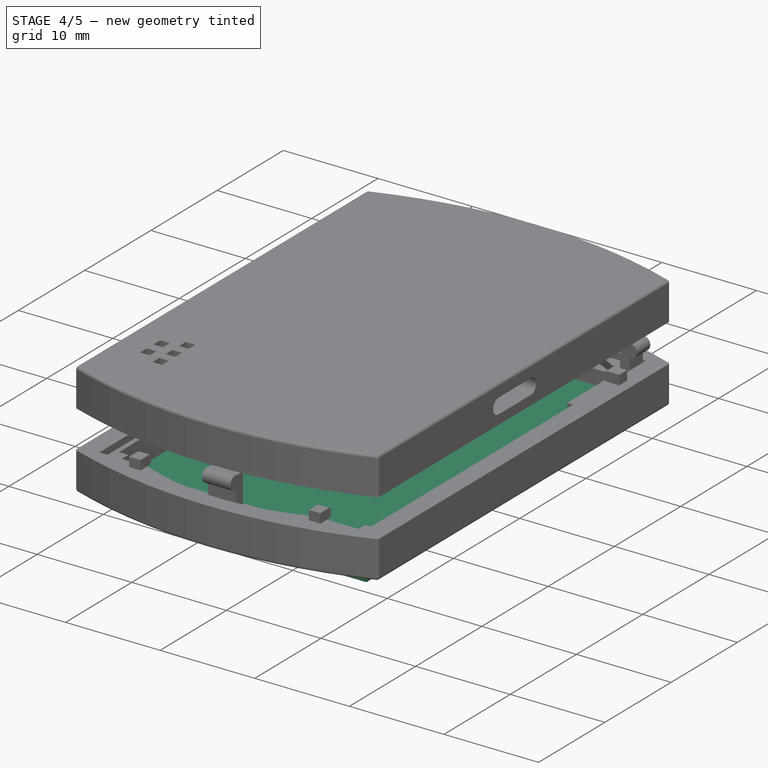
[diagram: stage 4 of 5 — iso view after this stage's code; geometry added in this stage tinted green]
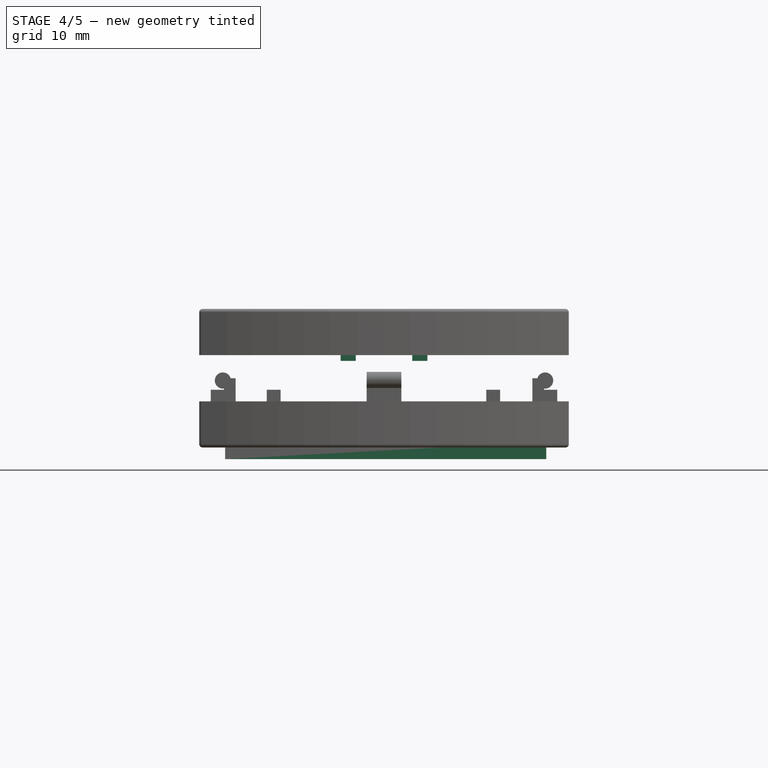
[diagram: stage 4 of 5 — front view after this stage's code; geometry added in this stage tinted green]
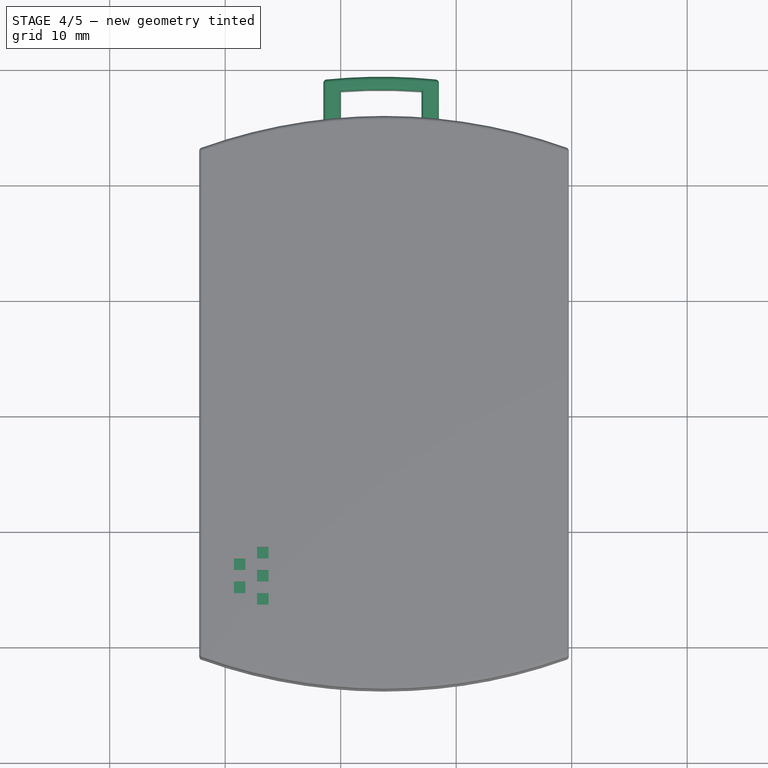
[diagram: stage 4 of 5 — top view after this stage's code; geometry added in this stage tinted green]
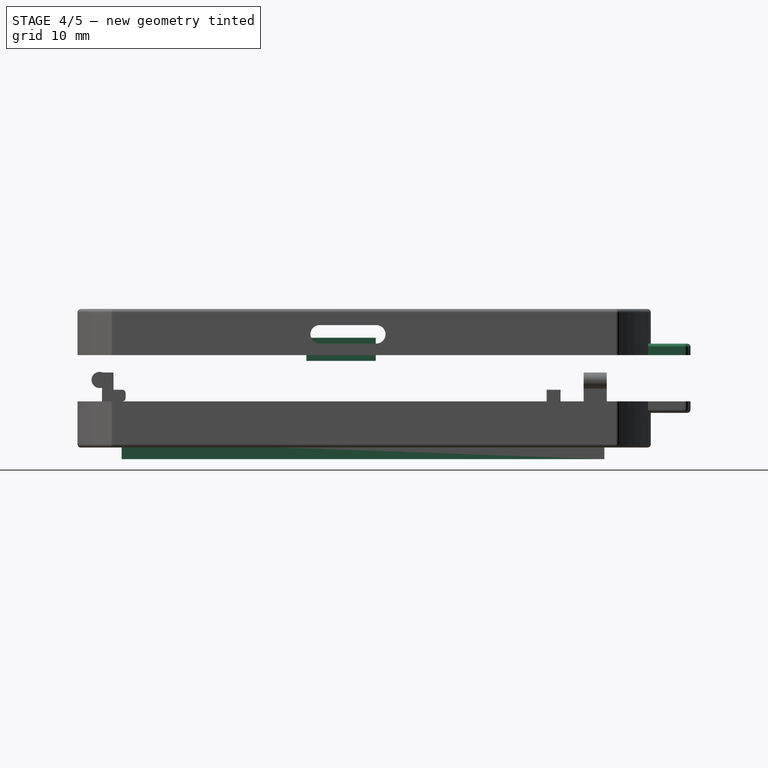
[diagram: stage 4 of 5 — right view after this stage's code; geometry added in this stage tinted green]
FEATURE [Sketcher::SketchObject] Sketch006
  Placement = pos=(0,0,0) rot=(0.57735,0.57735,0.57735;2.0944rad)
  sketch-geometry (4):
    g0: ArcOfCircle CenterX=14 CenterY=-1.5 CenterZ=0 NormalX=0 NormalY=0 NormalZ=1 Radius=0.5 StartAngle=1.5708 EndAngle=4.71239
    g1: ArcOfCircle CenterX=19 CenterY=-1.5 CenterZ=0 NormalX=0 NormalY=0 NormalZ=1 Radius=0.5 StartAngle=4.71239 EndAngle=7.85398
    g2: LineSegment StartX=14 StartY=-2 StartZ=0 EndX=19 EndY=-2 EndZ=0
    g3: LineSegment StartX=14 StartY=-1 StartZ=0 EndX=19 EndY=-1 EndZ=0
  constraints (10):
    c: Tangent(g0,g3) = 1.5708
    c: Tangent(g0,g2) = -1.5708
    c: Tangent(g2,g1) = -1.5708
    c: Tangent(g3,g1) = 1.5708
    c: Horizontal(g2)
    c: Equal(g0,g1)
    c: DistanceX(g0,g1) = 5
    c: DistanceY(g0,g0) = -1
    c: DistanceX(g-1,g0) = 14
    c: DistanceY(g-1,g0) = -1
FEATURE [Part::Extrusion] Extrude002  label="Extrude-btn-1"
  Base = -> Sketch006
  Dir = (4,0,0)
  Placement = pos=(-3.5,2.5,3.3) rot=(0,0,1;0rad)
  Solid = true
FEATURE [Part::Box] Box003  label="Cube"
  Height = 2
  Length = 1.3
  Placement = pos=(0,16,0.5) rot=(0,0,1;0rad)
  Width = 6
FEATURE [Part::Fuse] Fusion  label="Fusion-btn-1"
  Base = -> Extrude002
  Placement = pos=(10,0,-1) rot=(0,0,1;0rad)
  Tool = -> Box003
FEATURE [Sketcher::SketchObject] Sketch011
  Placement = pos=(0,0,0) rot=(0.57735,0.57735,0.57735;2.0944rad)
  sketch-geometry (4):
    g0: ArcOfCircle CenterX=14 CenterY=-1.5 CenterZ=0 NormalX=0 NormalY=0 NormalZ=1 Radius=0.5 StartAngle=1.5708 EndAngle=4.71239
    g1: ArcOfCircle CenterX=19 CenterY=-1.5 CenterZ=0 NormalX=0 NormalY=0 NormalZ=1 Radius=0.5 StartAngle=4.71239 EndAngle=7.85398
    g2: LineSegment StartX=14 StartY=-2 StartZ=0 EndX=19 EndY=-2 EndZ=0
    g3: LineSegment StartX=14 StartY=-1 StartZ=0 EndX=19 EndY=-1 EndZ=0
  constraints (10):
    c: Tangent(g0,g3) = 1.5708
    c: Tangent(g0,g2) = -1.5708
    c: Tangent(g2,g1) = -1.5708
    c: Tangent(g3,g1) = 1.5708
    c: Horizontal(g2)
    c: Equal(g0,g1)
    c: DistanceX(g0,g1) = 5
    c: DistanceY(g0,g0) = -1
    c: DistanceX(g-1,g0) = 14
    c: DistanceY(g-1,g0) = -1
FEATURE [Part::Extrusion] Extrude  label="Extrude-btn-002"
  Base = -> Sketch011
  Dir = (4,0,0)
  Placement = pos=(-3.5,2.5,3.3) rot=(0,0,1;0rad)
  Solid = true
FEATURE [Part::Box] Box004  label="Cube001"
  Height = 2
  Length = 1.3
  Placement = pos=(0,16,0.5) rot=(0,0,1;0rad)
  Width = 6
FEATURE [Part::Fuse] Fusion001  label="Fusion-btn-2"
  Base = -> Extrude
  Placement = pos=(17.5,38,-1) rot=(0,0,1;3.14159rad)
  Tool = -> Box004
FEATURE [Sketcher::SketchObject] Sketch025
  Placement = pos=(13.5,1,0) rot=(0,0,1;0rad)
  sketch-geometry (8):
    g0: ArcOfCircle CenterX=0 CenterY=1.26671 CenterZ=0 NormalX=0 NormalY=0 NormalZ=1 Radius=47 StartAngle=1.46421 EndAngle=1.67738
    g1: LineSegment StartX=-5 StartY=48 StartZ=0 EndX=-5 EndY=44 EndZ=0
    g2: LineSegment StartX=-3.5 StartY=47 StartZ=0 EndX=-3.5 EndY=44 EndZ=0
    g3: LineSegment StartX=-5 StartY=44 StartZ=0 EndX=-3.5 EndY=44 EndZ=0
    g4: LineSegment StartX=5 StartY=48 StartZ=0 EndX=5 EndY=44 EndZ=0
    g5: LineSegment StartX=5 StartY=44 StartZ=0 EndX=3.5 EndY=44 EndZ=0
    g6: LineSegment StartX=3.5 StartY=44 StartZ=0 EndX=3.5 EndY=47 EndZ=0
    g7: ArcOfCircle CenterX=0 CenterY=0 CenterZ=0 NormalX=0 NormalY=0 NormalZ=1 Radius=47.1301 StartAngle=1.49647 EndAngle=1.64513
  constraints (25):
    c: Radius(g0) = 47
    c: DistanceX(g-1,g0) = 5
    c: DistanceX(g-1,g0) = -5
    c: Coincident(g1,g0)
    c: Vertical(g1)
    c: Vertical(g2)
    c: Coincident(g3,g1)
    c: Coincident(g3,g2)
    c: Horizontal(g3)
    c: DistanceX(g3) = 1.5
    c: Coincident(g4,g0)
    c: Vertical(g4)
    c: Coincident(g5,g4)
    c: Horizontal(g5)
    c: Coincident(g6,g5)
    c: Vertical(g6)
    c: DistanceY(g6) = 47
    c: DistanceY(g2) = 47
    c: DistanceY(g2) = 44
    c: DistanceY(g5) = 44
    c: Coincident(g7,g-1)
    c: Coincident(g7,g2)
    c: Coincident(g7,g6)
    c: DistanceY(g0) = 48
    c: DistanceY(g0) = 48
FEATURE [PartDesign::Pad] Pad007  label="Pad-hanger-btm"
  Length = 1
  Length2 = 100
  Placement = pos=(13.5,1,0) rot=(0,0,1;0rad)
  Sketch = -> Sketch025
  Type = 0
FEATURE [Part::MultiFuse] Fusion013
  Shapes = -> [Fusion012,Pocket012]
FEATURE [Part::MultiFuse] Fusion014
  Shapes = -> [Pad007,Fusion013]
FEATURE [App::DocumentObjectGroup] Group004  label="strings"
  Group = -> [Box011,Box012,Box013,Box014,Box015]
FEATURE [Part::Box] Box016  label="Cube007"
  Height = 1.5
  Length = 27.8
  Placement = pos=(0,0,-9) rot=(0,0,1;0rad)
  Width = 41.8
FEATURE [App::DocumentObjectGroup] Group  label="Panel"
  Group = -> [Box,Cylinder,Box001,Box002,Board_Geoms,EMP_Models,Fillet005]
FEATURE [App::DocumentObjectGroup] Group005  label="BTN"
  Group = -> [Fusion,Fusion001]
FEATURE [PartDesign::Fillet] Fillet
  Base = -> Fusion014 [Edge27,Edge91,Edge28,Edge7,Edge4,Edge10,Edge17,Edge18,Edge19,Edge26,Edge73,Edge74,Edge92,Edge113]
  Radius = 0.3
FEATURE [PartDesign::Fillet] Fillet009
  Base = -> Fillet [Edge4,Edge1]
  Radius = 0.3
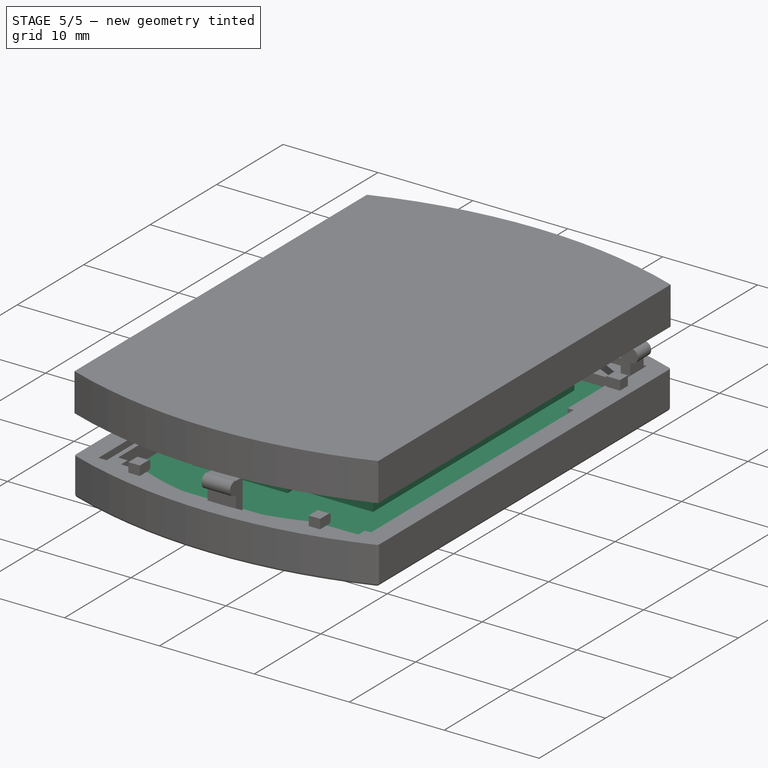
[diagram: stage 5 of 5 — iso view after this stage's code; geometry added in this stage tinted green]
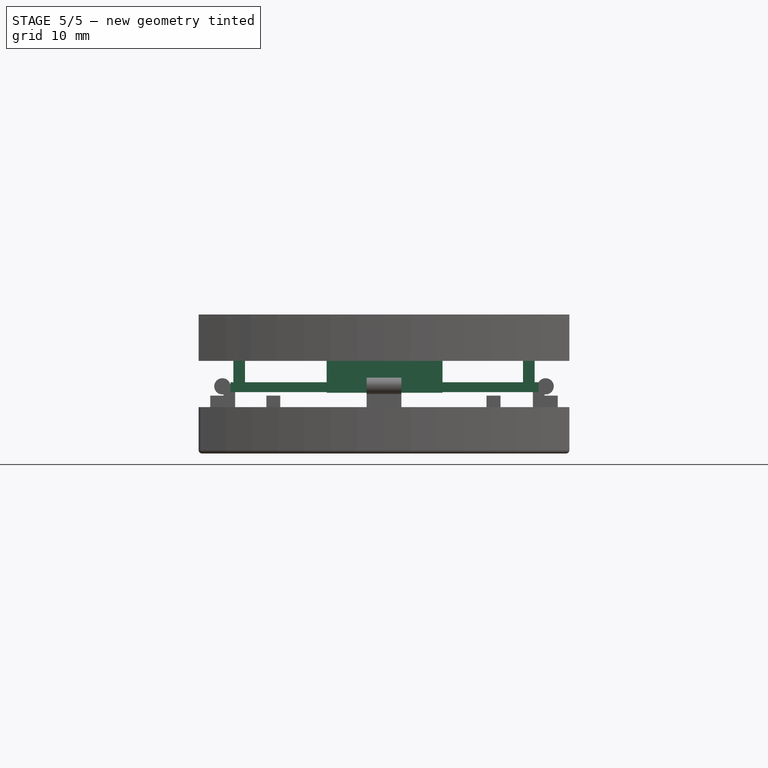
[diagram: stage 5 of 5 — front view after this stage's code; geometry added in this stage tinted green]
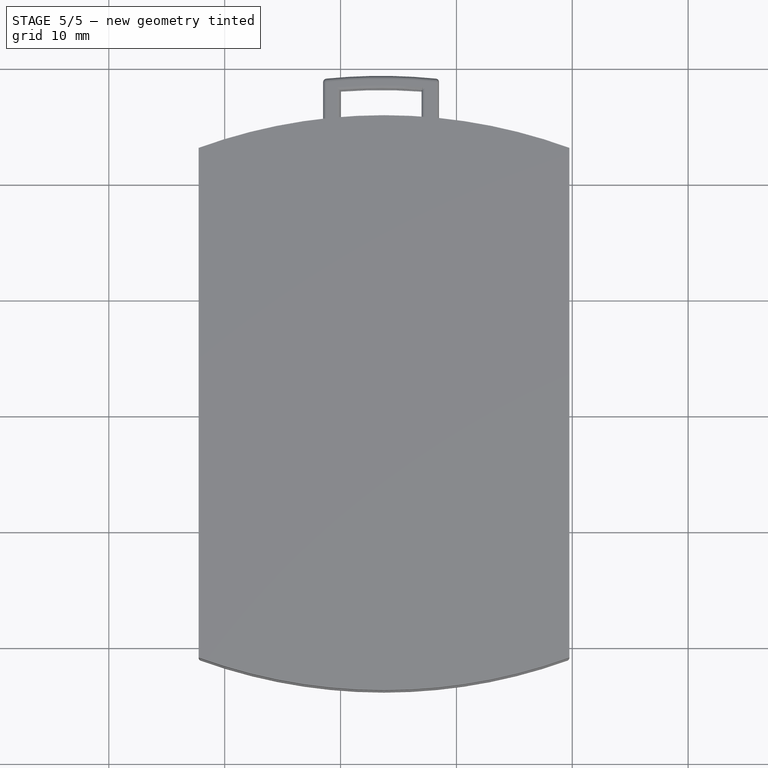
[diagram: stage 5 of 5 — top view after this stage's code; geometry added in this stage tinted green]
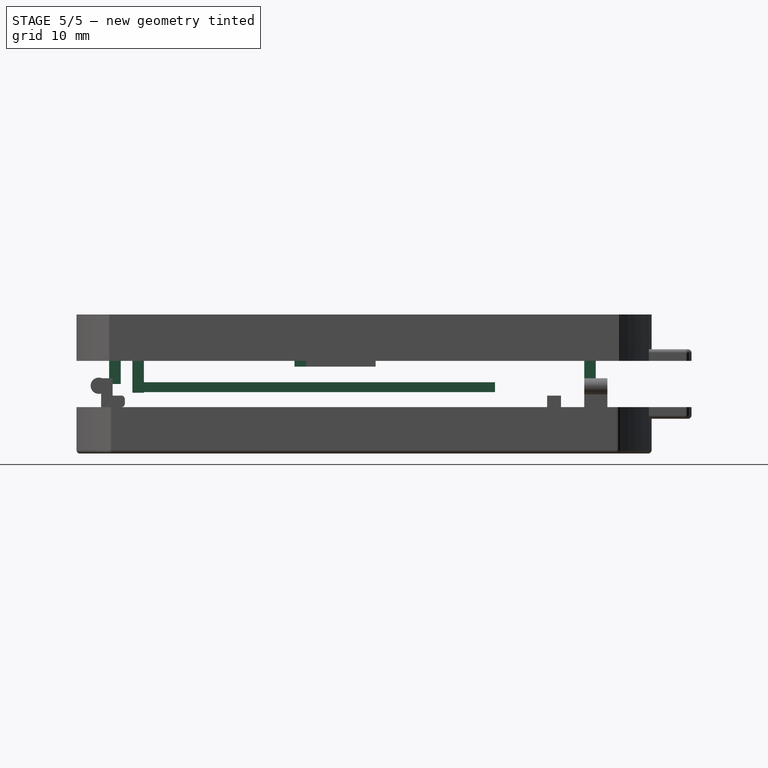
[diagram: stage 5 of 5 — right view after this stage's code; geometry added in this stage tinted green]
FEATURE [Part::Box] Box  label="LCD"
  Height = 0.85
  Length = 26.6
  Placement = pos=(0.5,2,-2.7) rot=(0,0,1;0rad)
  Width = 30.3
FEATURE [Part::Cylinder] Cylinder  label="batt"
  Angle = 360
  Height = 2.8
  Placement = pos=(13.75,31.75,0) rot=(0,0,1;0rad)
  Radius = 10
FEATURE [Part::Box] Box001  label="LCD-fpc"
  Height = 3
  Length = 10
  Placement = pos=(8.8,1,-2.75) rot=(0,0,1;0rad)
  Width = 1
FEATURE [Part::Box] Box002  label="Cube-tact-1"
  Height = 1.4
  Length = 3.55
  Placement = pos=(1,17,0) rot=(0,0,1;0rad)
  Width = 4.2
FEATURE [Sketcher::SketchObject] Sketch008
  Placement = pos=(13.75,21,0) rot=(0,0,1;0rad)
  Support = -> Pocket002 [Face5]
  sketch-geometry (4):
    g0: ArcOfCircle CenterX=0 CenterY=0 CenterZ=0 NormalX=0 NormalY=0 NormalZ=1 Radius=23 StartAngle=1.02191 EndAngle=2.11968
    g1: LineSegment StartX=-12 StartY=19.6214 StartZ=0 EndX=12 EndY=19.6214 EndZ=0
    g2: ArcOfCircle CenterX=0 CenterY=0 CenterZ=0 NormalX=0 NormalY=0 NormalZ=1 Radius=23 StartAngle=4.1635 EndAngle=5.26128
    g3: LineSegment StartX=-12 StartY=-19.6214 StartZ=0 EndX=12 EndY=-19.6214 EndZ=0
  constraints (12):
    c: Coincident(g0,g-1)
    c: Horizontal(g1)
    c: Coincident(g0,g1)
    c: Coincident(g1,g0)
    c: Coincident(g2,g-1)
    c: Radius(g2) = 23
    c: Coincident(g3,g2)
    c: Coincident(g3,g2)
    c: Horizontal(g3)
    c: Radius(g0) = 23
    c: DistanceX(g-1,g0) = -12
    c: DistanceX(g-1,g2) = -12
FEATURE [Sketcher::SketchObject] Sketch010  label="Sketch-btm001"
  Placement = pos=(13.75,21,0) rot=(0,0,1;0rad)
  sketch-geometry (4):
    g0: ArcOfCircle CenterX=0 CenterY=-22 CenterZ=0 NormalX=0 NormalY=0 NormalZ=1 Radius=46.8188 StartAngle=1.22203 EndAngle=1.91957
    g1: ArcOfCircle CenterX=0 CenterY=22 CenterZ=0 NormalX=0 NormalY=0 NormalZ=1 Radius=46.8188 StartAngle=4.36362 EndAngle=5.06116
    g2: LineSegment StartX=-16 StartY=22 StartZ=0 EndX=-16 EndY=-22 EndZ=0
    g3: LineSegment StartX=16 StartY=-22 StartZ=0 EndX=16 EndY=22 EndZ=0
  constraints (14):
    c: Coincident(g2,g0)
    c: Coincident(g2,g1)
    c: Vertical(g2)
    c: Coincident(g3,g1)
    c: Coincident(g3,g0)
    c: Vertical(g3)
    c: DistanceX(g-1,g0) = -16
    c: DistanceX(g-1,g0) = 16
    c: DistanceY(g-1,g1) = 22
    c: DistanceY(g-1,g0) = -22
    c: DistanceY(g-1,g0) = 22
    c: DistanceY(g-1,g0) = 22
    c: DistanceY(g-1,g1) = -22
    c: DistanceY(g-1,g1) = -22
FEATURE [PartDesign::Pad] Pad002  label="Pad-btm001"
  Length = 4
  Length2 = 100
  Placement = pos=(13.75,21,0) rot=(0,0,1;0rad)
  Sketch = -> Sketch010
  Type = 0
FEATURE [Part::Box] Box011  label="Cube002"
  Height = 5.5
  Length = 1
  Placement = pos=(13,-1,-2) rot=(0,0,1;0rad)
  Width = 1
FEATURE [Part::Box] Box012  label="Cube003"
  Height = 6
  Length = 1
  Placement = pos=(0.75,40,-2.5) rot=(0,0,1;0rad)
  Width = 1
FEATURE [Part::Box] Box013  label="Cube004"
  Height = 6
  Length = 1
  Placement = pos=(25.75,40,-2.5) rot=(0,0,1;0rad)
  Width = 1
FEATURE [Part::Box] Box014  label="Cube005"
  Height = 1
  Length = 7
  Placement = pos=(10.25,15,-0.5) rot=(0,0,1;0rad)
  Width = 1
FEATURE [Part::Box] Box015  label="Cube006"
  Height = 4
  Length = 1
  Placement = pos=(13.25,15,-0.5) rot=(0,0,1;0rad)
  Width = 1
FEATURE [Part::Fillet] Fillet005  label="Fillet-plexi"
  Base = -> Box016
  Edges = 4 edges r=0.5: [Edge1,Edge3,Edge5,Edge7]
  Placement = pos=(-0.175,0.1,1) rot=(0,0,1;0rad)
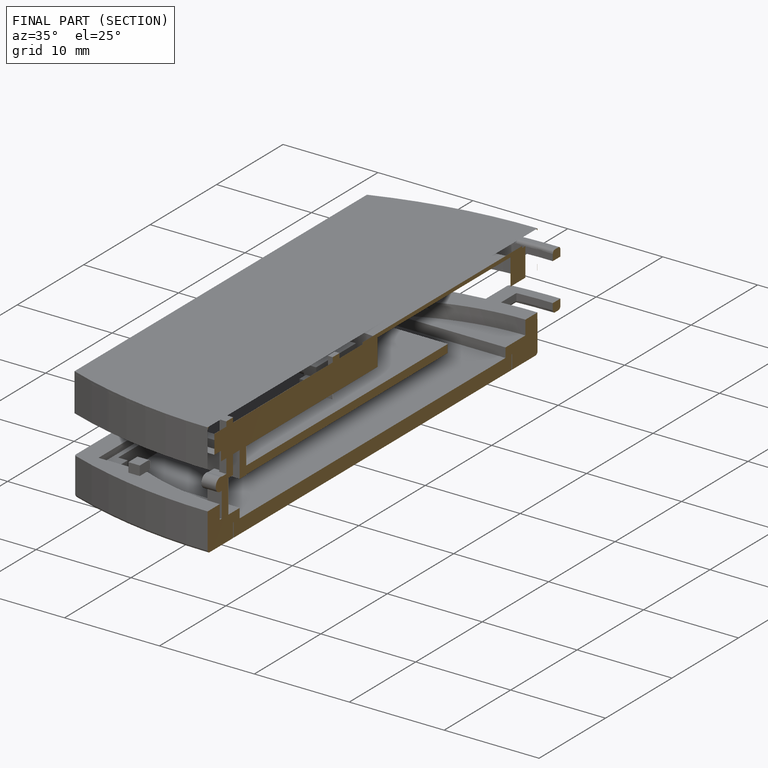
[diagram: finished part — half-section view (interior)]
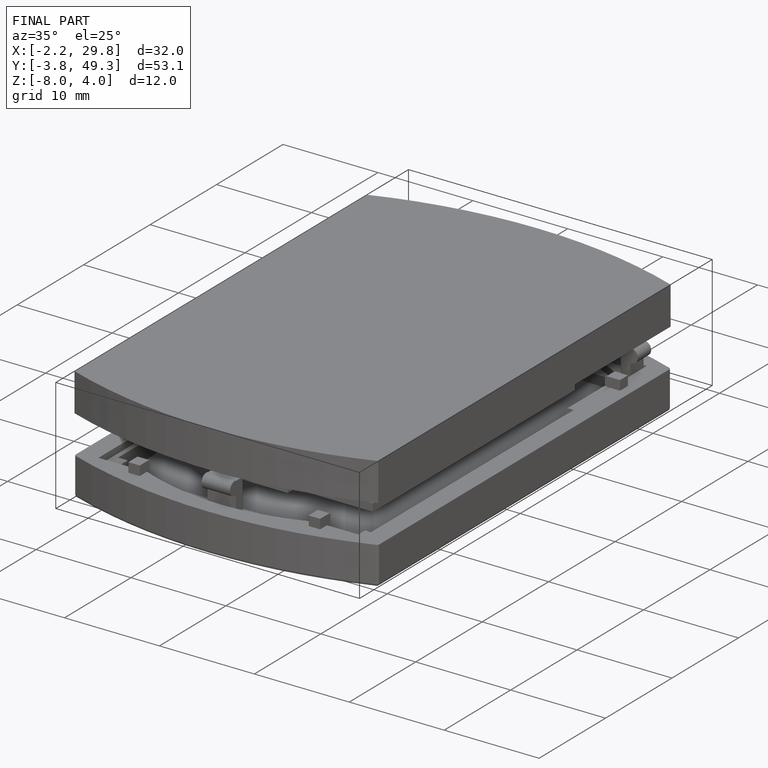
[diagram: finished part — iso view with bounding-box wireframe]
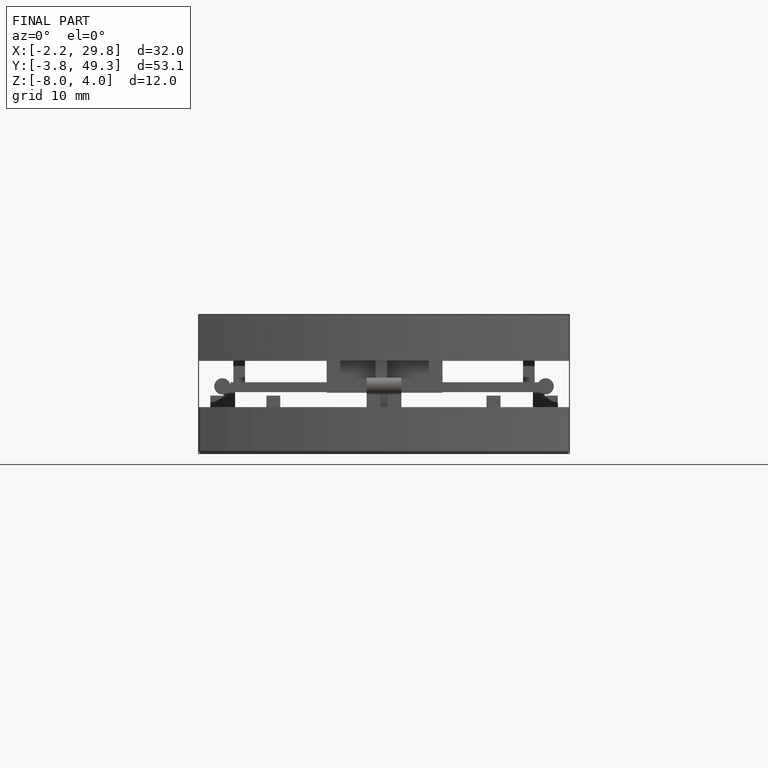
[diagram: finished part — front view with bounding-box wireframe]
